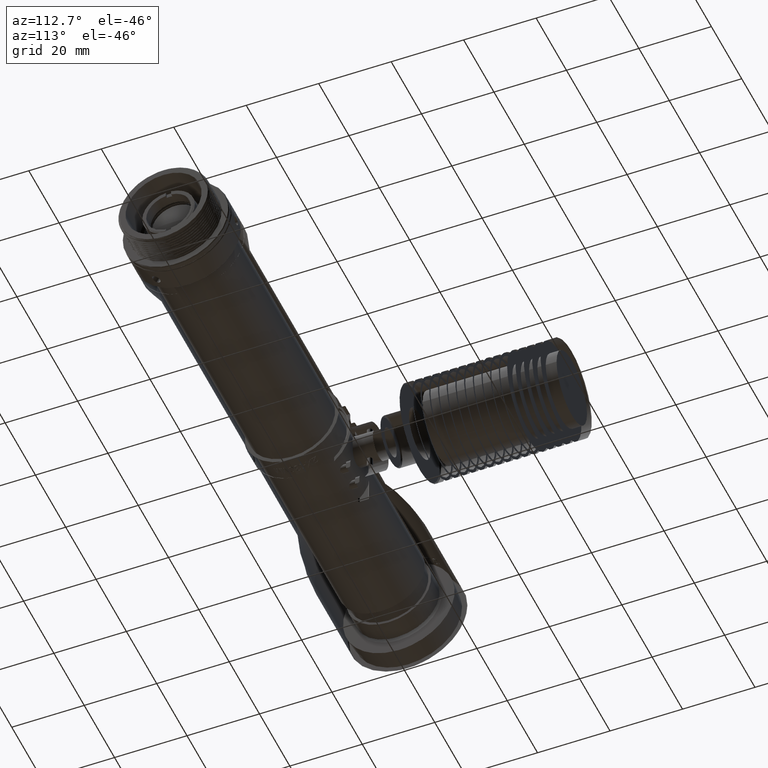
[diagram: clean part render]
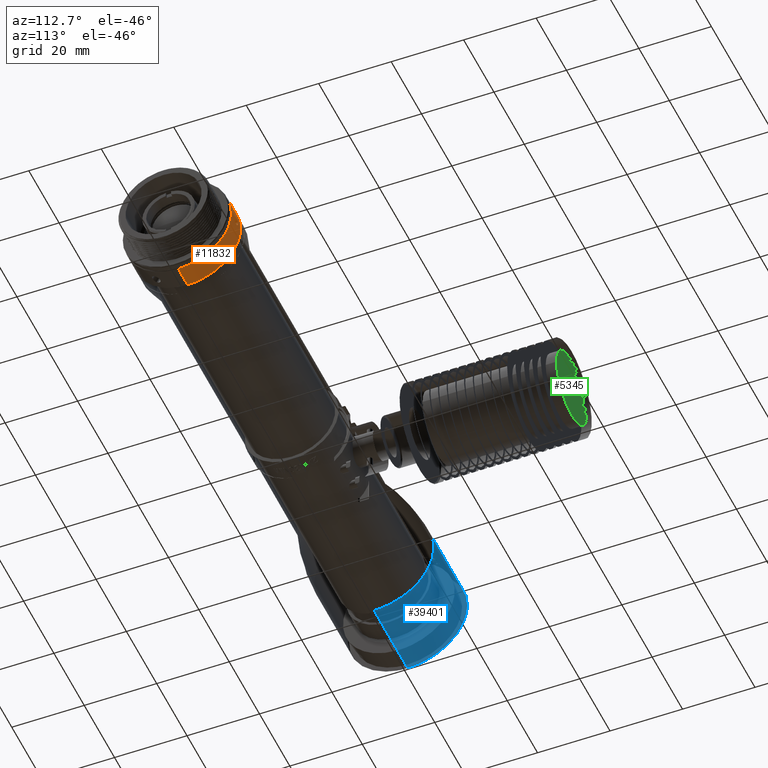
[diagram: same view with three faces highlighted in distinct colors, each labeled with its STEP entity id]
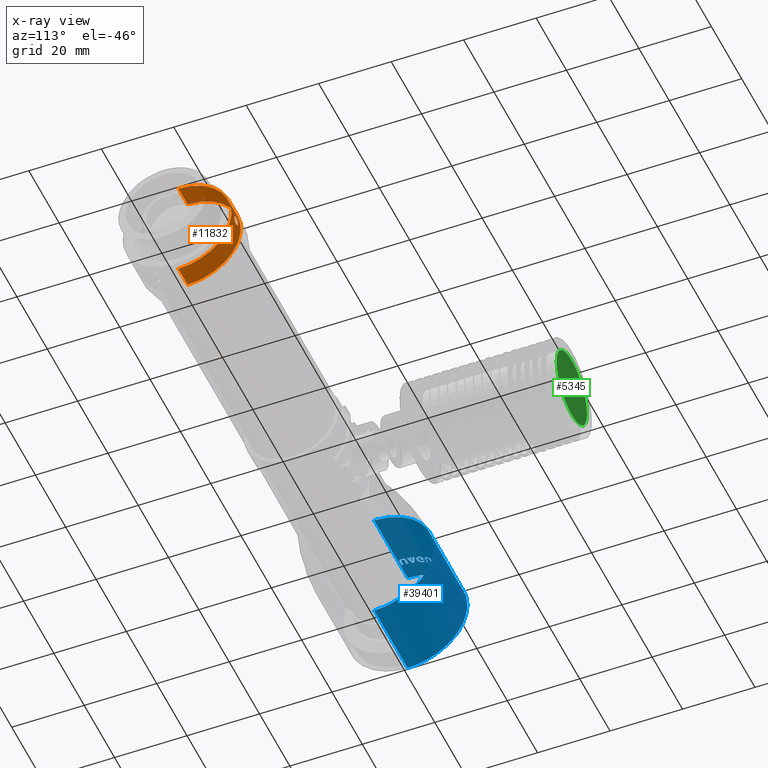
[diagram: x-ray of the same camera — body ghosted, the three highlighted faces saturated]
A machine part, auxiliary view with three faces highlighted in distinct colors.
The next image is the same camera in x-ray (body ghosted, the three faces saturated) — at least one of them is partly hidden behind the body in this view.
Their STEP definitions:

[orange] entity #11832 — the highlighted cylindrical surface (partial cylindrical patch) has radius 14.7 mm, axis along (-1, 0, 0).
#1037 = B_SPLINE_CURVE_WITH_KNOTS ( 'NONE', 3,
 ( #29255, #29035, #25666, #28815 ),
 .UNSPECIFIED., .F., .F.,
 ( 4, 4 ),
 ( 0.9938040929496725351, 1.000000000000000000 ),
 .UNSPECIFIED. ) ;
#1248 = VECTOR ( 'NONE', #4943, 1000.000000000000000 ) ;
#1564 = CARTESIAN_POINT ( 'NONE',  ( 106.1400000000000006, -5.392603844284260389E-30, 14.70000000000001350 ) ) ;
#1822 = CARTESIAN_POINT ( 'NONE',  ( 105.4201194852320356, 14.66794415015094089, 0.9810308543058091635 ) ) ;
#1915 = DIRECTION ( 'NONE',  ( -9.440671978105073736E-16, 6.732884679265400209E-17, -1.000000000000000000 ) ) ;
#1942 = CARTESIAN_POINT ( 'NONE',  ( 106.7077573639596153, 14.66238719472998397, -1.061023981886357381 ) ) ;
#2040 = CARTESIAN_POINT ( 'NONE',  ( 104.9845493852819089, 14.69572960412630636, -0.3332095225108277492 ) ) ;
#2169 = CARTESIAN_POINT ( 'NONE',  ( 106.9713823486024182, 14.67447518610561730, -0.8667400556139596146 ) ) ;
#2259 = CIRCLE ( 'NONE', #14427, 14.69999999999999929 ) ;
#2859 = B_SPLINE_CURVE_WITH_KNOTS ( 'NONE', 3,
 ( #30053, #19067, #11922, #32743, #25572, #39254, #36326, #2040, #19284, #40137, #15929, #39700, #8558, #23109, #29604, #12142, #35882, #5198, #32529, #1822, #29161, #43043, #25795, #26241 ),
 .UNSPECIFIED., .F., .F.,
 ( 4, 2, 2, 2, 2, 2, 2, 2, 2, 2, 2, 4 ),
 ( 0.000000000000000000, 0.1250000000000009992, 0.2500000000000019984, 0.3750000000000029976, 0.4375000000000015543, 0.5000000000000001110, 0.6249999999999970024, 0.6874999999999954481, 0.7187499999999947820, 0.7499999999999940048, 0.8749999999999970024, 1.000000000000000000 ),
 .UNSPECIFIED. ) ;
#3437 = AXIS2_PLACEMENT_3D ( 'NONE', #3704, #13582, #41555 ) ;
#3704 = CARTESIAN_POINT ( 'NONE',  ( 103.0900000000000034, -9.897340478520128816E-16, 2.220446049250309925E-15 ) ) ;
#4943 = DIRECTION ( 'NONE',  ( -1.000000000000000000, 0.000000000000000000, 0.000000000000000000 ) ) ;
#5197 = DIRECTION ( 'NONE',  ( 0.000000000000000000, -3.738315377435139871E-16, 1.000000000000000000 ) ) ;
#5198 = CARTESIAN_POINT ( 'NONE',  ( 105.2140957202224456, 14.68007263470314960, 0.7647717571870255027 ) ) ;
#5313 = CARTESIAN_POINT ( 'NONE',  ( 107.1282778640559457, 14.68385323766793604, 0.6821555653338657876 ) ) ;
#5586 = CARTESIAN_POINT ( 'NONE',  ( 103.0900000000000176, -2.484449628259534250E-29, 14.70000000000000107 ) ) ;
#5981 = CARTESIAN_POINT ( 'NONE',  ( 107.2008222917519191, 14.68856045087693829, 0.5681315630360224134 ) ) ;
#6708 = CIRCLE ( 'NONE', #28165, 14.69999999999999929 ) ;
#6942 = DIRECTION ( 'NONE',  ( -1.000000000000000000, 0.000000000000000000, 0.000000000000000000 ) ) ;
#7894 = VERTEX_POINT ( 'NONE', #21129 ) ;
#8457 = CARTESIAN_POINT ( 'NONE',  ( 106.6311999724527624, 14.65975074339473849, -1.097686682915298695 ) ) ;
#8558 = CARTESIAN_POINT ( 'NONE',  ( 104.9542226073968862, 14.69815720901232581, 0.2414773374950893448 ) ) ;
#8672 = CARTESIAN_POINT ( 'NONE',  ( 106.8218264349597604, 14.66710466438803984, -0.9885053319062949706 ) ) ;
#8896 = CARTESIAN_POINT ( 'NONE',  ( 107.1422698931543636, 14.68451809394208141, -0.6887771761968883855 ) ) ;
#9110 = CARTESIAN_POINT ( 'NONE',  ( 109.1900000000000119, 1.279087800440596137E-14, -14.70000000000000107 ) ) ;
#9127 = CARTESIAN_POINT ( 'NONE',  ( 107.2283405541975867, 14.69049361418253774, -0.5291126339975255055 ) ) ;
#9352 = CARTESIAN_POINT ( 'NONE',  ( 106.8289402787224276, 14.66646975968028421, 1.002116032244771304 ) ) ;
#10576 = B_SPLINE_CURVE_WITH_KNOTS ( 'NONE', 3,
 ( #39818, #32865, #42717, #33092, #9352, #39153, #25697, #36678, #5313, #5981, #19640, #39596, #22320, #25911, #43385, #9127, #8896, #2169, #22774, #26134, #8672, #1942, #8457, #36450, #22550, #11826 ),
 .UNSPECIFIED., .F., .F.,
 ( 4, 2, 2, 2, 2, 2, 2, 2, 2, 2, 2, 2, 4 ),
 ( 0.000000000000000000, 0.1242255116186899294, 0.2484510232373798588, 0.2795074011420570770, 0.3105637790467342674, 0.3726765348560887592, 0.4969020464747939125, 0.6211275580934989549, 0.7453530697122040527, 0.7764094476168833525, 0.8074658255215624303, 0.8695785813309290235, 0.9938040929496725351 ),
 .UNSPECIFIED. ) ;
#10830 = EDGE_CURVE ( 'NONE', #13954, #15358, #22164, .T. ) ;
#11077 = VERTEX_POINT ( 'NONE', #17477 ) ;
#11496 = CARTESIAN_POINT ( 'NONE',  ( 106.1173818233120016, 14.65095599549640148, 1.199786821932710135 ) ) ;
#11826 = CARTESIAN_POINT ( 'NONE',  ( 106.1626204234229505, 14.65095688189569856, -1.199785921705711633 ) ) ;
#11832 = ADVANCED_FACE ( 'NONE', ( #28726, #15928 ), #15491, .T. ) ;
#11922 = CARTESIAN_POINT ( 'NONE',  ( 105.8898029255381630, 14.65296526703026103, -1.183968392647285484 ) ) ;
#12142 = CARTESIAN_POINT ( 'NONE',  ( 105.1321954001451360, 14.68520959436820483, 0.6528971441753838034 ) ) ;
#12779 = ORIENTED_EDGE ( 'NONE', *, *, #33600, .F. ) ;
#13454 = VERTEX_POINT ( 'NONE', #36845 ) ;
#13582 = DIRECTION ( 'NONE',  ( -1.000000000000000000, 6.042030064476740353E-16, 1.208406013197449848E-15 ) ) ;
#13954 = VERTEX_POINT ( 'NONE', #35663 ) ;
#14427 = AXIS2_PLACEMENT_3D ( 'NONE', #30565, #33490, #23625 ) ;
#14861 = ORIENTED_EDGE ( 'NONE', *, *, #21524, .T. ) ;
#15088 = VERTEX_POINT ( 'NONE', #16608 ) ;
#15358 = VERTEX_POINT ( 'NONE', #5586 ) ;
#15491 = CYLINDRICAL_SURFACE ( 'NONE', #21308, 14.69999999999999929 ) ;
#15807 = EDGE_CURVE ( 'NONE', #31728, #7894, #10576, .T. ) ;
#15928 = FACE_OUTER_BOUND ( 'NONE', #29298, .T. ) ;
#15929 = CARTESIAN_POINT ( 'NONE',  ( 104.9405970796551486, 14.69994644175018550, -0.06909788437603540945 ) ) ;
#16000 = CIRCLE ( 'NONE', #22422, 14.69999999999999929 ) ;
#16608 = CARTESIAN_POINT ( 'NONE',  ( 109.1899999999999835, 14.05118971762279578, -4.319035484847423945 ) ) ;
#17477 = CARTESIAN_POINT ( 'NONE',  ( 106.1400000818999985, 14.65093853648969890, -1.199999999999999956 ) ) ;
#18120 = ORIENTED_EDGE ( 'NONE', *, *, #15807, .F. ) ;
#19067 = CARTESIAN_POINT ( 'NONE',  ( 106.0260228014899724, 14.65093853648970246, -1.200000000000001954 ) ) ;
#19284 = CARTESIAN_POINT ( 'NONE',  ( 104.9670998952117458, 14.69728751540549538, -0.2623542678896618185 ) ) ;
#19640 = CARTESIAN_POINT ( 'NONE',  ( 107.2375735900110101, 14.69119188156050804, 0.4914910525792264839 ) ) ;
#20262 = EDGE_CURVE ( 'NONE', #15358, #40112, #22030, .T. ) ;
#20573 = ORIENTED_EDGE ( 'NONE', *, *, #20262, .F. ) ;
#21129 = CARTESIAN_POINT ( 'NONE',  ( 106.1626204234229505, 14.65095688189569856, -1.199785921705711633 ) ) ;
#21308 = AXIS2_PLACEMENT_3D ( 'NONE', #22425, #25352, #5197 ) ;
#21524 = EDGE_CURVE ( 'NONE', #40835, #13454, #31128, .T. ) ;
#21619 = EDGE_CURVE ( 'NONE', #7894, #11077, #1037, .T. ) ;
#22030 = CIRCLE ( 'NONE', #3437, 14.69999999999999929 ) ;
#22164 = LINE ( 'NONE', #1564, #1248 ) ;
#22320 = CARTESIAN_POINT ( 'NONE',  ( 107.3379768650702601, 14.69978863187647100, 0.1329485543329361474 ) ) ;
#22392 = ORIENTED_EDGE ( 'NONE', *, *, #21619, .F. ) ;
#22422 = AXIS2_PLACEMENT_3D ( 'NONE', #24304, #27667, #44244 ) ;
#22425 = CARTESIAN_POINT ( 'NONE',  ( 106.1400000000000006, 5.495323604829649891E-15, 1.332267629550189900E-14 ) ) ;
#22550 = CARTESIAN_POINT ( 'NONE',  ( 106.2743409250073228, 14.65114524264955520, -1.197680433056891980 ) ) ;
#22774 = CARTESIAN_POINT ( 'NONE',  ( 106.9340559669426085, 14.67245779459206823, -0.9009830654385000415 ) ) ;
#23109 = CARTESIAN_POINT ( 'NONE',  ( 105.0301796066591464, 14.69220390997739756, 0.4630264861300382173 ) ) ;
#23625 = DIRECTION ( 'NONE',  ( -9.440671978105073736E-16, 1.000000000000000000, -3.418388614873430875E-10 ) ) ;
#24304 = CARTESIAN_POINT ( 'NONE',  ( 109.1899999999999977, -8.587797282764198720E-15, -2.220446049250309925E-15 ) ) ;
#24627 = CARTESIAN_POINT ( 'NONE',  ( 106.1400000000000006, 1.279087800440591403E-14, -14.69999999999998508 ) ) ;
#25352 = DIRECTION ( 'NONE',  ( -1.000000000000000000, 0.000000000000000000, 0.000000000000000000 ) ) ;
#25408 = EDGE_CURVE ( 'NONE', #11077, #31728, #2859, .T. ) ;
#25562 = CARTESIAN_POINT ( 'NONE',  ( 103.0899999999999892, 4.319035484847318251, -14.05118971762281532 ) ) ;
#25572 = CARTESIAN_POINT ( 'NONE',  ( 105.4370943214186553, 14.66710931084137215, -0.9928074509607620612 ) ) ;
#25666 = CARTESIAN_POINT ( 'NONE',  ( 106.1475023350029119, 14.65093853648970068, -1.199999999487970426 ) ) ;
#25697 = CARTESIAN_POINT ( 'NONE',  ( 107.0408380572285552, 14.67851263513923143, 0.7942161313432416492 ) ) ;
#25795 = CARTESIAN_POINT ( 'NONE',  ( 106.0067537458602089, 14.65112678336259044, 1.197701280156043824 ) ) ;
#25911 = CARTESIAN_POINT ( 'NONE',  ( 107.3416990068149062, 14.70018012549545006, -0.09350606591458278383 ) ) ;
#26134 = CARTESIAN_POINT ( 'NONE',  ( 106.8596996221361195, 14.66880428638325817, -0.9614196881389902583 ) ) ;
#26241 = CARTESIAN_POINT ( 'NONE',  ( 106.1173818233120016, 14.65095599549640148, 1.199786821932710135 ) ) ;
#27369 = EDGE_CURVE ( 'NONE', #40835, #15088, #2259, .T. ) ;
#27667 = DIRECTION ( 'NONE',  ( 1.000000000000000000, 1.208406013610529959E-15, 1.208406013067319945E-15 ) ) ;
#28165 = AXIS2_PLACEMENT_3D ( 'NONE', #42034, #38902, #1915 ) ;
#28726 = FACE_BOUND ( 'NONE', #35580, .T. ) ;
#28815 = CARTESIAN_POINT ( 'NONE',  ( 106.1400000818999985, 14.65093853648969890, -1.199999999999999956 ) ) ;
#29035 = CARTESIAN_POINT ( 'NONE',  ( 106.1570482353705529, 14.65094826664292782, -1.199891836022077385 ) ) ;
#29161 = CARTESIAN_POINT ( 'NONE',  ( 105.5793613604810446, 14.66172303153840240, 1.072409279085417388 ) ) ;
#29255 = CARTESIAN_POINT ( 'NONE',  ( 106.1626204234229505, 14.65095688189569856, -1.199785921705711633 ) ) ;
#29298 = EDGE_LOOP ( 'NONE', ( #40672, #14861, #12779, #20573, #31425, #37028 ) ) ;
#29604 = CARTESIAN_POINT ( 'NONE',  ( 105.0643886650992016, 14.68971116869573379, 0.5392953047049513504 ) ) ;
#30053 = CARTESIAN_POINT ( 'NONE',  ( 106.1400000818999985, 14.65093853648969890, -1.199999999999999956 ) ) ;
#30565 = CARTESIAN_POINT ( 'NONE',  ( 109.1899999999999977, -8.587797282764198720E-15, -2.220446049250309925E-15 ) ) ;
#31128 = LINE ( 'NONE', #24627, #44270 ) ;
#31425 = ORIENTED_EDGE ( 'NONE', *, *, #10830, .F. ) ;
#31728 = VERTEX_POINT ( 'NONE', #11496 ) ;
#32529 = CARTESIAN_POINT ( 'NONE',  ( 105.2444462011152950, 14.67824151956092571, 0.8003274246165735795 ) ) ;
#32743 = CARTESIAN_POINT ( 'NONE',  ( 105.5951550413599449, 14.66107218919248467, -1.080520107125075846 ) ) ;
#32865 = CARTESIAN_POINT ( 'NONE',  ( 106.2337845727361696, 14.65077629267556780, 1.201981226847225193 ) ) ;
#33092 = CARTESIAN_POINT ( 'NONE',  ( 106.6692285085061513, 14.66049485814309961, 1.088348333138490442 ) ) ;
#33490 = DIRECTION ( 'NONE',  ( 1.000000000000000000, 1.208406013610529959E-15, 1.208406013067319945E-15 ) ) ;
#33600 = EDGE_CURVE ( 'NONE', #40112, #13454, #6708, .T. ) ;
#33665 = ORIENTED_EDGE ( 'NONE', *, *, #25408, .F. ) ;
#33939 = EDGE_CURVE ( 'NONE', #15088, #13954, #16000, .T. ) ;
#35580 = EDGE_LOOP ( 'NONE', ( #33665, #22392, #18120 ) ) ;
#35663 = CARTESIAN_POINT ( 'NONE',  ( 109.1899999999999835, -2.927413515468598497E-29, 14.69999999999999751 ) ) ;
#35882 = CARTESIAN_POINT ( 'NONE',  ( 105.1575390799615803, 14.68358199252485896, 0.6906121317342607258 ) ) ;
#36326 = CARTESIAN_POINT ( 'NONE',  ( 105.0639175957408469, 14.68954561941574610, -0.5535571289588059329 ) ) ;
#36450 = CARTESIAN_POINT ( 'NONE',  ( 106.4098480672709286, 14.65336697469934357, -1.179811801830610740 ) ) ;
#36678 = CARTESIAN_POINT ( 'NONE',  ( 107.1012016516172594, 14.68215748873432602, 0.7199860092845098425 ) ) ;
#36845 = CARTESIAN_POINT ( 'NONE',  ( 103.0899999999999892, 1.279087800440592981E-14, -14.69999999999999929 ) ) ;
#37028 = ORIENTED_EDGE ( 'NONE', *, *, #33939, .F. ) ;
#38902 = DIRECTION ( 'NONE',  ( -1.000000000000000000, 6.042030064476740353E-16, 1.208406013197449848E-15 ) ) ;
#39153 = CARTESIAN_POINT ( 'NONE',  ( 107.0067101930913367, 14.67650280508427940, 0.8314103344917536109 ) ) ;
#39254 = CARTESIAN_POINT ( 'NONE',  ( 105.1538402980845746, 14.68340929511138704, -0.7122022676060587587 ) ) ;
#39596 = CARTESIAN_POINT ( 'NONE',  ( 107.3199622013640209, 14.69756603924391847, 0.2694701548821826220 ) ) ;
#39700 = CARTESIAN_POINT ( 'NONE',  ( 104.9389652144864016, 14.70009284195552368, 0.1043215021652879881 ) ) ;
#39818 = CARTESIAN_POINT ( 'NONE',  ( 106.1173818233120016, 14.65095599549640148, 1.199786821932710135 ) ) ;
#40112 = VERTEX_POINT ( 'NONE', #25562 ) ;
#40137 = CARTESIAN_POINT ( 'NONE',  ( 104.9451277620230627, 14.69939650404855414, -0.1296331462405620472 ) ) ;
#40672 = ORIENTED_EDGE ( 'NONE', *, *, #27369, .F. ) ;
#40835 = VERTEX_POINT ( 'NONE', #9110 ) ;
#41555 = DIRECTION ( 'NONE',  ( -9.440671978105073736E-16, 6.732884679265400209E-17, -1.000000000000000000 ) ) ;
#42034 = CARTESIAN_POINT ( 'NONE',  ( 103.0900000000000034, -9.897340478520128816E-16, 2.220446049250309925E-15 ) ) ;
#42717 = CARTESIAN_POINT ( 'NONE',  ( 106.3718212224673891, 14.65264812464073785, 1.187789471781383943 ) ) ;
#43043 = CARTESIAN_POINT ( 'NONE',  ( 105.8724447861881401, 14.65331434814422629, 1.180165900859821093 ) ) ;
#43385 = CARTESIAN_POINT ( 'NONE',  ( 107.3275826252755536, 14.69832704260601197, -0.2325786953065891172 ) ) ;
#44244 = DIRECTION ( 'NONE',  ( -9.440671978105073736E-16, 1.000000000000000000, -3.418388614873430875E-10 ) ) ;
#44270 = VECTOR ( 'NONE', #6942, 1000.000000000000000 ) ;

[blue] entity #39401 — the highlighted cylindrical surface (partial cylindrical patch) has radius 16.5 mm, axis along (1, 0, 0).
#42 = B_SPLINE_CURVE_WITH_KNOTS ( 'NONE', 3,
 ( #1038, #21429, #34879, #13839 ),
 .UNSPECIFIED., .F., .F.,
 ( 4, 4 ),
 ( 0.000000000000000000, 1.000000000000000000 ),
 .UNSPECIFIED. ) ;
#63 = ORIENTED_EDGE ( 'NONE', *, *, #12277, .F. ) ;
#152 = EDGE_CURVE ( 'NONE', #19134, #29912, #23883, .T. ) ;
#311 = B_SPLINE_CURVE_WITH_KNOTS ( 'NONE', 3,
 ( #40094, #44331, #23948, #30235 ),
 .UNSPECIFIED., .F., .F.,
 ( 4, 4 ),
 ( 0.000000000000000000, 1.000000000000000000 ),
 .UNSPECIFIED. ) ;
#358 = CARTESIAN_POINT ( 'NONE',  ( -35.30999998217165370, 3.026607196848110082, 16.22003849790825214 ) ) ;
#421 = B_SPLINE_CURVE_WITH_KNOTS ( 'NONE', 3,
 ( #3325, #14511, #34897, #34015 ),
 .UNSPECIFIED., .F., .F.,
 ( 4, 4 ),
 ( 0.000000000000000000, 1.000000000000000000 ),
 .UNSPECIFIED. ) ;
#599 = CARTESIAN_POINT ( 'NONE',  ( -36.12194841748864604, 8.552355249525760428, 14.11053576888799910 ) ) ;
#697 = B_SPLINE_CURVE_WITH_KNOTS ( 'NONE', 3,
 ( #22153, #38978, #42770, #42546 ),
 .UNSPECIFIED., .F., .F.,
 ( 4, 4 ),
 ( 0.000000000000000000, 1.000000000000000000 ),
 .UNSPECIFIED. ) ;
#740 = CARTESIAN_POINT ( 'NONE',  ( -37.31000000120400273, 1.709528275677060005, 16.41120084190345096 ) ) ;
#768 = CARTESIAN_POINT ( 'NONE',  ( -35.45528173711365127, 0.5772048733887249483, 16.48990098623414724 ) ) ;
#789 = B_SPLINE_CURVE_WITH_KNOTS ( 'NONE', 3,
 ( #36380, #5683, #19335, #39970 ),
 .UNSPECIFIED., .F., .F.,
 ( 4, 4 ),
 ( 0.000000000000000000, 1.000000000000000000 ),
 .UNSPECIFIED. ) ;
#832 = CARTESIAN_POINT ( 'NONE',  ( -42.10999999999999943, 16.09756097560990185, 3.621951219511870157 ) ) ;
#866 = CARTESIAN_POINT ( 'NONE',  ( -35.26790902899999480, 1.542106244411991511, 16.43005810225181662 ) ) ;
#867 = CARTESIAN_POINT ( 'NONE',  ( -35.55137385994200372, 9.566662289828141041, 13.44354762086343946 ) ) ;
#1008 = EDGE_CURVE ( 'NONE', #6778, #33895, #36084, .T. ) ;
#1038 = CARTESIAN_POINT ( 'NONE',  ( -35.71563840776509835, 7.878020471171280015, 14.49782030013530054 ) ) ;
#1141 = CARTESIAN_POINT ( 'NONE',  ( -35.65487441199999807, 1.495173746196152953, 16.43234093612329616 ) ) ;
#1179 = CARTESIAN_POINT ( 'NONE',  ( -37.07917827096429875, 10.84320301324192037, 12.43683836081054039 ) ) ;
#1305 = CARTESIAN_POINT ( 'NONE',  ( -35.31477932000000663, 3.463577443273578638, 16.13429271181626135 ) ) ;
#1353 = ORIENTED_EDGE ( 'NONE', *, *, #36153, .F. ) ;
#1368 = ORIENTED_EDGE ( 'NONE', *, *, #30040, .F. ) ;
#1563 = EDGE_CURVE ( 'NONE', #5890, #37300, #311, .T. ) ;
#1768 = CARTESIAN_POINT ( 'NONE',  ( -35.74991854805609393, 2.191956981667937843, 16.35375567234042649 ) ) ;
#1772 = CARTESIAN_POINT ( 'NONE',  ( -37.25568908199999640, 9.729320502690306682, 13.32785814289743875 ) ) ;
#2108 = CARTESIAN_POINT ( 'NONE',  ( -36.02690428328249794, 6.535885274171769233, 15.15032025016230044 ) ) ;
#2125 = ORIENTED_EDGE ( 'NONE', *, *, #36508, .F. ) ;
#2133 = CARTESIAN_POINT ( 'NONE',  ( -35.31477923488100146, 3.947433728395215002, 16.02085412706465206 ) ) ;
#2140 = AXIS2_PLACEMENT_3D ( 'NONE', #20864, #17517, #3640 ) ;
#2145 = CARTESIAN_POINT ( 'NONE',  ( -20.00000000061569949, 16.49999999960710184, -2.226045136739664861E-05 ) ) ;
#2151 = CARTESIAN_POINT ( 'NONE',  ( -36.29302781410004997, 4.920940734393020044, 15.74910607901055037 ) ) ;
#2172 = CARTESIAN_POINT ( 'NONE',  ( -36.58630760291109141, 3.705194596994555223, 16.07890817467581357 ) ) ;
#2222 = CARTESIAN_POINT ( 'NONE',  ( -35.71563840776509835, 7.878020471171280015, 14.49782030013530054 ) ) ;
#2314 = EDGE_CURVE ( 'NONE', #13504, #3119, #32825, .T. ) ;
#2315 = CARTESIAN_POINT ( 'NONE',  ( -36.18978016796464914, 3.608792811876074591, 16.10051596811654662 ) ) ;
#2387 = CARTESIAN_POINT ( 'NONE',  ( -36.02690428328249794, 6.535885274171769233, 15.15032025016230044 ) ) ;
#2404 = EDGE_CURVE ( 'NONE', #8469, #34058, #14659, .T. ) ;
#2533 = ORIENTED_EDGE ( 'NONE', *, *, #15603, .F. ) ;
#2571 = CARTESIAN_POINT ( 'NONE',  ( -42.10999999999989996, 15.97227470334798838, -4.278162380287442446 ) ) ;
#2612 = CARTESIAN_POINT ( 'NONE',  ( -36.92631033903939652, 6.289149875438849513, 15.25439588593525109 ) ) ;
#2616 = CARTESIAN_POINT ( 'NONE',  ( -37.31000009022130826, 3.350742507043150020, 16.15619155605180168 ) ) ;
#2671 = CARTESIAN_POINT ( 'NONE',  ( -37.31000000120395299, 8.964082800648121463, 13.85262500544634001 ) ) ;
#2744 = B_SPLINE_CURVE_WITH_KNOTS ( 'NONE', 3,
 ( #740, #11068, #7690, #43834 ),
 .UNSPECIFIED., .F., .F.,
 ( 4, 4 ),
 ( 0.000000000000000000, 1.000000000000000000 ),
 .UNSPECIFIED. ) ;
#2809 = CARTESIAN_POINT ( 'NONE',  ( -35.26790902899999480, 10.22385480320031981, 12.95078348843166083 ) ) ;
#2855 = ORIENTED_EDGE ( 'NONE', *, *, #23780, .F. ) ;
#3005 = B_SPLINE_CURVE_WITH_KNOTS ( 'NONE', 3,
 ( #40002, #9087, #866, #16012 ),
 .UNSPECIFIED., .F., .F.,
 ( 4, 4 ),
 ( 0.000000000000000000, 1.000000000000000000 ),
 .UNSPECIFIED. ) ;
#3006 = B_SPLINE_CURVE_WITH_KNOTS ( 'NONE', 3,
 ( #21080, #34986, #1141, #24459 ),
 .UNSPECIFIED., .F., .F.,
 ( 4, 4 ),
 ( 0.000000000000000000, 1.000000000000000000 ),
 .UNSPECIFIED. ) ;
#3036 = CARTESIAN_POINT ( 'NONE',  ( -35.56978626750252914, 4.093356030369432297, 15.98451203373345564 ) ) ;
#3040 = EDGE_CURVE ( 'NONE', #6604, #29683, #697, .T. ) ;
#3119 = VERTEX_POINT ( 'NONE', #36042 ) ;
#3264 = CARTESIAN_POINT ( 'NONE',  ( -35.62636115899999822, 6.002617767895549683, 15.36940402009780016 ) ) ;
#3297 = ORIENTED_EDGE ( 'NONE', *, *, #6055, .F. ) ;
#3302 = CARTESIAN_POINT ( 'NONE',  ( -35.77435844981427948, 8.515045005554727098, 14.13334276772896203 ) ) ;
#3311 = B_SPLINE_CURVE_WITH_KNOTS ( 'NONE', 3,
 ( #35319, #5452, #12181, #2315 ),
 .UNSPECIFIED., .F., .F.,
 ( 4, 4 ),
 ( 0.000000000000000000, 1.000000000000000000 ),
 .UNSPECIFIED. ) ;
#3325 = CARTESIAN_POINT ( 'NONE',  ( -35.45528197320870589, 7.562012855811720335, 14.66512739692633893 ) ) ;
#3354 = LINE ( 'NONE', #20799, #33749 ) ;
#3426 = CARTESIAN_POINT ( 'NONE',  ( -37.31000000115855642, 0.3246574221779420233, 16.49680567739455128 ) ) ;
#3488 = CARTESIAN_POINT ( 'NONE',  ( -35.68881874978913515, 5.658857564556688757, 15.49971119197730474 ) ) ;
#3640 = DIRECTION ( 'NONE',  ( 0.000000000000000000, 1.345724878333519912E-16, 1.000000000000000000 ) ) ;
#3685 = EDGE_CURVE ( 'NONE', #29905, #10377, #17196, .T. ) ;
#3763 = CARTESIAN_POINT ( 'NONE',  ( -35.26790902899999480, 10.22385480320031981, 12.95078348843166083 ) ) ;
#3785 = ORIENTED_EDGE ( 'NONE', *, *, #31761, .F. ) ;
#3819 = CARTESIAN_POINT ( 'NONE',  ( -37.31000000000000227, 7.625638094205119621, 14.63304054584348890 ) ) ;
#3891 = CARTESIAN_POINT ( 'NONE',  ( -20.00000000000000000, 16.49999999974350118, -4.452058805651610071E-05 ) ) ;
#4140 = CARTESIAN_POINT ( 'NONE',  ( -42.11000000000005627, 7.212552351928464667, 14.95567144339329424 ) ) ;
#4149 = EDGE_CURVE ( 'NONE', #13182, #25985, #38037, .T. ) ;
#4272 = CARTESIAN_POINT ( 'NONE',  ( -35.62636115899999822, 1.125504682874358453, 16.46213079811072433 ) ) ;
#4315 = EDGE_CURVE ( 'NONE', #23353, #43006, #10237, .T. ) ;
#4363 = EDGE_CURVE ( 'NONE', #31509, #23525, #10284, .T. ) ;
#4488 = B_SPLINE_CURVE_WITH_KNOTS ( 'NONE', 3,
 ( #19390, #39576, #5734, #29484 ),
 .UNSPECIFIED., .F., .F.,
 ( 4, 4 ),
 ( 0.000000000000000000, 1.000000000000000000 ),
 .UNSPECIFIED. ) ;
#4535 = B_SPLINE_CURVE_WITH_KNOTS ( 'NONE', 3,
 ( #17316, #20009, #13301, #20877 ),
 .UNSPECIFIED., .F., .F.,
 ( 4, 4 ),
 ( 0.000000000000000000, 1.000000000000000000 ),
 .UNSPECIFIED. ) ;
#4601 = CARTESIAN_POINT ( 'NONE',  ( -36.89542656967056189, 7.768526467919583567, 14.55678523984931516 ) ) ;
#4610 = CARTESIAN_POINT ( 'NONE',  ( -37.31000000120395299, 0.8102068213810270647, 16.48009602238430205 ) ) ;
#4688 = EDGE_CURVE ( 'NONE', #38125, #15332, #27881, .T. ) ;
#4693 = EDGE_CURVE ( 'NONE', #17179, #10089, #8120, .T. ) ;
#4831 = B_SPLINE_CURVE_WITH_KNOTS ( 'NONE', 3,
 ( #36406, #29681, #36631, #16457, #22725, #30127, #19595, #43574, #15569, #40216, #33496, #33267, #29911, #33045, #2571, #22507, #39775, #6157 ),
 .UNSPECIFIED., .F., .F.,
 ( 4, 2, 2, 2, 2, 2, 2, 2, 4 ),
 ( 0.000000000000000000, 0.1249999999999999722, 0.2499999999999999445, 0.3749999999999999445, 0.5000000000000000000, 0.6250000000000001110, 0.7500000000000000000, 0.8750000000000000000, 1.000000000000000000 ),
 .UNSPECIFIED. ) ;
#4896 = EDGE_LOOP ( 'NONE', ( #13776, #23295, #2533, #3785, #8908, #26762, #63, #14744, #10043, #23084, #20913, #24615, #44283, #10255, #29375, #27767, #34701, #7807, #18767, #9073, #18980, #43246 ) ) ;
#5069 = CARTESIAN_POINT ( 'NONE',  ( -35.89811480964674928, 3.721953097859248771, 16.07515210616949730 ) ) ;
#5091 = CARTESIAN_POINT ( 'NONE',  ( -37.31000009022130826, 3.350742507043150020, 16.15619155605180168 ) ) ;
#5242 = CARTESIAN_POINT ( 'NONE',  ( -35.62636115899999822, 8.164193990655780553, 14.33861696543940134 ) ) ;
#5273 = VERTEX_POINT ( 'NONE', #11873 ) ;
#5361 = CARTESIAN_POINT ( 'NONE',  ( -35.95901560415634890, 8.964082799914418587, 13.85262500598490121 ) ) ;
#5370 = CARTESIAN_POINT ( 'NONE',  ( -36.31746774452224713, 5.382483939415430463, 15.59739935507635167 ) ) ;
#5452 = CARTESIAN_POINT ( 'NONE',  ( -35.60644388021788842, 3.349806599562820342, 16.15692924660066154 ) ) ;
#5471 = CARTESIAN_POINT ( 'NONE',  ( -35.26790902874390099, 6.130069646817670304, 15.31901583399585043 ) ) ;
#5492 = EDGE_CURVE ( 'NONE', #13282, #26089, #34778, .T. ) ;
#5528 = CARTESIAN_POINT ( 'NONE',  ( -35.82957591191014757, 3.225966927741522827, 16.18188598602024086 ) ) ;
#5536 = CARTESIAN_POINT ( 'NONE',  ( -36.29574340304879598, 9.311964525069610588, 13.62120834156525895 ) ) ;
#5597 = ORIENTED_EDGE ( 'NONE', *, *, #39204, .F. ) ;
#5683 = CARTESIAN_POINT ( 'NONE',  ( -35.33036659800001900, 8.599867787706831024, 14.08267518790614226 ) ) ;
#5729 = CARTESIAN_POINT ( 'NONE',  ( -35.33020684791330979, 5.498444167736350252, 15.55786805276198947 ) ) ;
#5731 = CARTESIAN_POINT ( 'NONE',  ( -35.55137385994200372, 9.566662289828141041, 13.44354762086343946 ) ) ;
#5734 = CARTESIAN_POINT ( 'NONE',  ( -36.65148001699999725, 11.07924010353293198, 12.22703743527189779 ) ) ;
#5749 = CARTESIAN_POINT ( 'NONE',  ( -37.31000000000000227, 3.529954635592162493, 16.11902328904869464 ) ) ;
#5787 = B_SPLINE_CURVE_WITH_KNOTS ( 'NONE', 3,
 ( #13422, #40530, #23502, #37175 ),
 .UNSPECIFIED., .F., .F.,
 ( 4, 4 ),
 ( 0.000000000000000000, 1.000000000000000000 ),
 .UNSPECIFIED. ) ;
#5890 = VERTEX_POINT ( 'NONE', #6091 ) ;
#5891 = CARTESIAN_POINT ( 'NONE',  ( -35.74177190415417726, 0.3246574179651338099, 16.49680549180252953 ) ) ;
#6055 = EDGE_CURVE ( 'NONE', #22229, #33269, #24518, .T. ) ;
#6091 = CARTESIAN_POINT ( 'NONE',  ( -35.71461636606505152, 1.580613144876874987, 16.42411830474209822 ) ) ;
#6120 = CARTESIAN_POINT ( 'NONE',  ( -31.05499999999999972, 2.020667218593128367E-15, 16.50000000000000000 ) ) ;
#6143 = CARTESIAN_POINT ( 'NONE',  ( -35.30999990999309546, 4.702505878119570326, 15.81570230448540393 ) ) ;
#6157 = CARTESIAN_POINT ( 'NONE',  ( -42.10999999999999943, 16.50000000000000000, 1.403400386199941896E-10 ) ) ;
#6176 = B_SPLINE_CURVE_WITH_KNOTS ( 'NONE', 3,
 ( #26714, #19986, #16848, #20198 ),
 .UNSPECIFIED., .F., .F.,
 ( 4, 4 ),
 ( 0.000000000000000000, 1.000000000000000000 ),
 .UNSPECIFIED. ) ;
#6257 = CARTESIAN_POINT ( 'NONE',  ( -36.40934373641361788, 8.964082799955642500, 13.85262500593145418 ) ) ;
#6298 = CARTESIAN_POINT ( 'NONE',  ( -35.54727282610595296, 5.210278251168730002, 15.65576572851879966 ) ) ;
#6309 = CARTESIAN_POINT ( 'NONE',  ( -35.50919892690189528, 5.249464982922634526, 15.64272421981656436 ) ) ;
#6329 = ORIENTED_EDGE ( 'NONE', *, *, #2404, .F. ) ;
#6542 = EDGE_CURVE ( 'NONE', #33680, #29905, #19196, .T. ) ;
#6565 = EDGE_CURVE ( 'NONE', #24904, #26380, #26660, .T. ) ;
#6593 = CARTESIAN_POINT ( 'NONE',  ( -35.45528197320870589, 7.562012855811720335, 14.66512739692633893 ) ) ;
#6604 = VERTEX_POINT ( 'NONE', #358 ) ;
#6649 = ORIENTED_EDGE ( 'NONE', *, *, #27473, .F. ) ;
#6661 = CARTESIAN_POINT ( 'NONE',  ( -36.88501697643084754, 6.905661519939569892, 14.98544242562721607 ) ) ;
#6719 = CARTESIAN_POINT ( 'NONE',  ( -35.31477921984674850, 3.219819873073275218, 16.18279209472049729 ) ) ;
#6738 = B_SPLINE_CURVE_WITH_KNOTS ( 'NONE', 3,
 ( #11720, #11505, #18438, #1179 ),
 .UNSPECIFIED., .F., .F.,
 ( 4, 4 ),
 ( 0.000000000000000000, 1.000000000000000000 ),
 .UNSPECIFIED. ) ;
#6778 = VERTEX_POINT ( 'NONE', #21829 ) ;
#6782 = FACE_OUTER_BOUND ( 'NONE', #38224, .T. ) ;
#6816 = CARTESIAN_POINT ( 'NONE',  ( -35.94000679085100103, 7.336586665060830015, 14.77919132109293976 ) ) ;
#6938 = CARTESIAN_POINT ( 'NONE',  ( -35.62636115899999822, 1.261145663698332031, 16.45173278460359612 ) ) ;
#6998 = ORIENTED_EDGE ( 'NONE', *, *, #19083, .F. ) ;
#7099 = CARTESIAN_POINT ( 'NONE',  ( -37.17211410927215098, 6.637698885369689883, 15.10599064961474980 ) ) ;
#7208 = B_SPLINE_CURVE_WITH_KNOTS ( 'NONE', 3,
 ( #15360, #36864, #40008, #29250 ),
 .UNSPECIFIED., .F., .F.,
 ( 4, 4 ),
 ( 0.000000000000000000, 1.000000000000000000 ),
 .UNSPECIFIED. ) ;
#7326 = EDGE_CURVE ( 'NONE', #14041, #18337, #10873, .T. ) ;
#7690 = CARTESIAN_POINT ( 'NONE',  ( -37.31000000000000227, 2.031429353041355412, 16.37527180987895647 ) ) ;
#7698 = CARTESIAN_POINT ( 'NONE',  ( -35.57748132690689857, 10.85174552006296089, 12.42938530938761943 ) ) ;
#7709 = VERTEX_POINT ( 'NONE', #15350 ) ;
#7782 = CARTESIAN_POINT ( 'NONE',  ( -37.05473848687145022, 5.210699216850829707, 15.65562562374450017 ) ) ;
#7807 = ORIENTED_EDGE ( 'NONE', *, *, #32556, .F. ) ;
#7867 = VERTEX_POINT ( 'NONE', #31010 ) ;
#8120 = B_SPLINE_CURVE_WITH_KNOTS ( 'NONE', 3,
 ( #29790, #9411, #15455, #36287 ),
 .UNSPECIFIED., .F., .F.,
 ( 4, 4 ),
 ( 0.000000000000000000, 1.000000000000000000 ),
 .UNSPECIFIED. ) ;
#8189 = EDGE_CURVE ( 'NONE', #37360, #28274, #43953, .T. ) ;
#8207 = CARTESIAN_POINT ( 'NONE',  ( -35.62636115899999822, 6.002617767895549683, 15.36940402009780016 ) ) ;
#8233 = B_SPLINE_CURVE_WITH_KNOTS ( 'NONE', 3,
 ( #3426, #31198, #13960, #41501 ),
 .UNSPECIFIED., .F., .F.,
 ( 4, 4 ),
 ( 0.000000000000000000, 1.000000000000000000 ),
 .UNSPECIFIED. ) ;
#8413 = CARTESIAN_POINT ( 'NONE',  ( -37.06258765472210115, 9.563359930465258785, 13.44589702623770044 ) ) ;
#8459 = CARTESIAN_POINT ( 'NONE',  ( -36.64335581147094700, 4.160289123196844407, 15.96938934018006506 ) ) ;
#8469 = VERTEX_POINT ( 'NONE', #28069 ) ;
#8614 = CARTESIAN_POINT ( 'NONE',  ( -35.95901560415634890, 8.964082799914418587, 13.85262500598490121 ) ) ;
#8642 = CARTESIAN_POINT ( 'NONE',  ( -35.46292654700000213, 6.776061401664033035, 15.04745502586182582 ) ) ;
#8700 = CARTESIAN_POINT ( 'NONE',  ( -37.31000000120400273, 7.768526467629359722, 14.55678523997396034 ) ) ;
#8908 = ORIENTED_EDGE ( 'NONE', *, *, #30144, .F. ) ;
#8957 = B_SPLINE_CURVE_WITH_KNOTS ( 'NONE', 3,
 ( #35550, #15383, #11815, #832 ),
 .UNSPECIFIED., .F., .F.,
 ( 4, 4 ),
 ( 0.000000000000000000, 1.000000000000000000 ),
 .UNSPECIFIED. ) ;
#8983 = EDGE_CURVE ( 'NONE', #25985, #12791, #16648, .T. ) ;
#9036 = CARTESIAN_POINT ( 'NONE',  ( -37.31000000120395299, 8.964082800648121463, 13.85262500544634001 ) ) ;
#9073 = ORIENTED_EDGE ( 'NONE', *, *, #19615, .F. ) ;
#9087 = CARTESIAN_POINT ( 'NONE',  ( -35.33036659799999768, 1.764387676919344949, 16.40629153706671417 ) ) ;
#9104 = CARTESIAN_POINT ( 'NONE',  ( -20.00000000000995115, -3.263421380982265094E-11, 16.49999999956105157 ) ) ;
#9171 = B_SPLINE_CURVE_WITH_KNOTS ( 'NONE', 3,
 ( #867, #14101, #42088, #35367 ),
 .UNSPECIFIED., .F., .F.,
 ( 4, 4 ),
 ( 0.000000000000000000, 1.000000000000000000 ),
 .UNSPECIFIED. ) ;
#9175 = CARTESIAN_POINT ( 'NONE',  ( -35.95901560415274645, 2.191956982149380284, 16.35375567221250037 ) ) ;
#9396 = CARTESIAN_POINT ( 'NONE',  ( -35.45663945029464514, 1.934871570086524883, 16.38616099046234709 ) ) ;
#9411 = CARTESIAN_POINT ( 'NONE',  ( -36.97191446800001557, 6.204334131518196571, 15.28936402848803056 ) ) ;
#9489 = ORIENTED_EDGE ( 'NONE', *, *, #39671, .F. ) ;
#9672 = CARTESIAN_POINT ( 'NONE',  ( -35.73498302499999824, 5.017081468887592877, 15.72006195430959785 ) ) ;
#9943 = FACE_BOUND ( 'NONE', #36175, .T. ) ;
#9983 = ORIENTED_EDGE ( 'NONE', *, *, #29474, .F. ) ;
#10038 = VERTEX_POINT ( 'NONE', #31775 ) ;
#10043 = ORIENTED_EDGE ( 'NONE', *, *, #11229, .F. ) ;
#10089 = VERTEX_POINT ( 'NONE', #29288 ) ;
#10161 = FACE_BOUND ( 'NONE', #21530, .T. ) ;
#10199 = VERTEX_POINT ( 'NONE', #30180 ) ;
#10210 = ORIENTED_EDGE ( 'NONE', *, *, #6565, .F. ) ;
#10237 = B_SPLINE_CURVE_WITH_KNOTS ( 'NONE', 3,
 ( #34584, #34144, #41093, #6593 ),
 .UNSPECIFIED., .F., .F.,
 ( 4, 4 ),
 ( 0.000000000000000000, 1.000000000000000000 ),
 .UNSPECIFIED. ) ;
#10255 = ORIENTED_EDGE ( 'NONE', *, *, #32480, .F. ) ;
#10284 = B_SPLINE_CURVE_WITH_KNOTS ( 'NONE', 3,
 ( #18443, #24721, #38392, #7698 ),
 .UNSPECIFIED., .F., .F.,
 ( 4, 4 ),
 ( 0.000000000000000000, 1.000000000000000000 ),
 .UNSPECIFIED. ) ;
#10377 = VERTEX_POINT ( 'NONE', #25202 ) ;
#10481 = ORIENTED_EDGE ( 'NONE', *, *, #26403, .F. ) ;
#10533 = ORIENTED_EDGE ( 'NONE', *, *, #38892, .F. ) ;
#10703 = CARTESIAN_POINT ( 'NONE',  ( -35.91013580363516411, 8.552355291667913306, 14.11053583902900499 ) ) ;
#10724 = CARTESIAN_POINT ( 'NONE',  ( -35.57748132690689857, 10.85174552006296089, 12.42938530938761943 ) ) ;
#10851 = CARTESIAN_POINT ( 'NONE',  ( -35.71563817261070284, 0.9343942791662620539, 16.47352140052110059 ) ) ;
#10873 = B_SPLINE_CURVE_WITH_KNOTS ( 'NONE', 3,
 ( #42948, #18762, #32438, #12266 ),
 .UNSPECIFIED., .F., .F.,
 ( 4, 4 ),
 ( 0.000000000000000000, 1.000000000000000000 ),
 .UNSPECIFIED. ) ;
#10904 = ORIENTED_EDGE ( 'NONE', *, *, #43173, .F. ) ;
#10958 = CARTESIAN_POINT ( 'NONE',  ( -35.73362525199055284, 6.349518191478560780, 15.22936698409240108 ) ) ;
#11068 = CARTESIAN_POINT ( 'NONE',  ( -37.31000000000000227, 1.870619783922242707, 16.39442019983104259 ) ) ;
#11095 = B_SPLINE_CURVE_WITH_KNOTS ( 'NONE', 3,
 ( #17050, #30051, #43711, #43936 ),
 .UNSPECIFIED., .F., .F.,
 ( 4, 4 ),
 ( 0.000000000000000000, 1.000000000000000000 ),
 .UNSPECIFIED. ) ;
#11120 = VERTEX_POINT ( 'NONE', #2151 ) ;
#11229 = EDGE_CURVE ( 'NONE', #14371, #39892, #38390, .T. ) ;
#11247 = ORIENTED_EDGE ( 'NONE', *, *, #36817, .F. ) ;
#11493 = CARTESIAN_POINT ( 'NONE',  ( -35.81340318995620464, 5.548573478837409922, 15.53909046083525070 ) ) ;
#11505 = CARTESIAN_POINT ( 'NONE',  ( -37.35344868699999665, 10.47937540888186447, 12.74910658928300755 ) ) ;
#11526 = CARTESIAN_POINT ( 'NONE',  ( -36.12194841748864604, 8.552355249525760428, 14.11053576888799910 ) ) ;
#11585 = B_SPLINE_CURVE_WITH_KNOTS ( 'NONE', 3,
 ( #27305, #40974, #20776, #34459 ),
 .UNSPECIFIED., .F., .F.,
 ( 4, 4 ),
 ( 0.000000000000000000, 1.000000000000000000 ),
 .UNSPECIFIED. ) ;
#11607 = B_SPLINE_CURVE_WITH_KNOTS ( 'NONE', 3,
 ( #19840, #30374, #19391, #27010 ),
 .UNSPECIFIED., .F., .F.,
 ( 4, 4 ),
 ( 0.000000000000000000, 1.000000000000000000 ),
 .UNSPECIFIED. ) ;
#11678 = EDGE_CURVE ( 'NONE', #15332, #14371, #43691, .T. ) ;
#11720 = CARTESIAN_POINT ( 'NONE',  ( -37.35344868699999665, 10.22258336253019984, 12.95178711201003985 ) ) ;
#11815 = CARTESIAN_POINT ( 'NONE',  ( -42.10999999999991417, 16.36475768038534540, 2.434410309398772565 ) ) ;
#11866 = B_SPLINE_CURVE_WITH_KNOTS ( 'NONE', 3,
 ( #29557, #43666, #39868, #2222 ),
 .UNSPECIFIED., .F., .F.,
 ( 4, 4 ),
 ( 0.000000000000000000, 1.000000000000000000 ),
 .UNSPECIFIED. ) ;
#11873 = CARTESIAN_POINT ( 'NONE',  ( -36.38535636352889213, 6.038806124856689550, 15.35522128099555061 ) ) ;
#12036 = CARTESIAN_POINT ( 'NONE',  ( -37.31000041182289806, 3.886375301400879945, 16.03577522342004968 ) ) ;
#12039 = EDGE_CURVE ( 'NONE', #29912, #32502, #11095, .T. ) ;
#12042 = EDGE_CURVE ( 'NONE', #28269, #39567, #41000, .T. ) ;
#12060 = CARTESIAN_POINT ( 'NONE',  ( -37.31000000115855642, 8.552355250003078169, 14.11053576846589941 ) ) ;
#12181 = CARTESIAN_POINT ( 'NONE',  ( -35.89811584099626174, 3.479466101297785219, 16.12950356984422484 ) ) ;
#12254 = CARTESIAN_POINT ( 'NONE',  ( -36.64335533111375298, 3.074771274626102890, 16.21342613927384946 ) ) ;
#12266 = CARTESIAN_POINT ( 'NONE',  ( -37.17211410927215098, 6.637698885369689883, 15.10599064961474980 ) ) ;
#12277 = EDGE_CURVE ( 'NONE', #26939, #6778, #33463, .T. ) ;
#12396 = CARTESIAN_POINT ( 'NONE',  ( -37.31000000000000227, 8.828106104095535756, 13.94061600843160242 ) ) ;
#12400 = CARTESIAN_POINT ( 'NONE',  ( -35.58019688525141078, 0.4088785248850514420, 16.49579288014155054 ) ) ;
#12420 = B_SPLINE_CURVE_WITH_KNOTS ( 'NONE', 3,
 ( #21987, #15060, #42389, #35667 ),
 .UNSPECIFIED., .F., .F.,
 ( 4, 4 ),
 ( 0.000000000000000000, 1.000000000000000000 ),
 .UNSPECIFIED. ) ;
#12441 = ORIENTED_EDGE ( 'NONE', *, *, #25067, .F. ) ;
#12451 = CARTESIAN_POINT ( 'NONE',  ( -35.31477921984674850, 3.219819873073275218, 16.18279209472049729 ) ) ;
#12477 = CARTESIAN_POINT ( 'NONE',  ( -35.73362525199055284, 6.349518191478560780, 15.22936698409240108 ) ) ;
#12587 = B_SPLINE_CURVE_WITH_KNOTS ( 'NONE', 3,
 ( #35290, #4601, #31930, #38875 ),
 .UNSPECIFIED., .F., .F.,
 ( 4, 4 ),
 ( 0.000000000000000000, 1.000000000000000000 ),
 .UNSPECIFIED. ) ;
#12680 = CARTESIAN_POINT ( 'NONE',  ( -36.16790902804444841, 6.951204852207790275, 14.96431592493000196 ) ) ;
#12684 = CARTESIAN_POINT ( 'NONE',  ( -35.44480893328294968, 5.334113980053140303, 15.61400743068764996 ) ) ;
#12780 = VERTEX_POINT ( 'NONE', #19471 ) ;
#12785 = B_SPLINE_CURVE_WITH_KNOTS ( 'NONE', 3,
 ( #10724, #17642, #28178, #3763 ),
 .UNSPECIFIED., .F., .F.,
 ( 4, 4 ),
 ( 0.000000000000000000, 1.000000000000000000 ),
 .UNSPECIFIED. ) ;
#12791 = VERTEX_POINT ( 'NONE', #26642 ) ;
#12878 = CARTESIAN_POINT ( 'NONE',  ( -36.39667119412473539, 0.3246574210081071832, 16.49680567741196668 ) ) ;
#12935 = CARTESIAN_POINT ( 'NONE',  ( -36.88094359400000144, 6.373524068149081678, 15.21960962013891283 ) ) ;
#12956 = B_SPLINE_CURVE_WITH_KNOTS ( 'NONE', 3,
 ( #15392, #35995, #19188, #43155 ),
 .UNSPECIFIED., .F., .F.,
 ( 4, 4 ),
 ( 0.000000000000000000, 1.000000000000000000 ),
 .UNSPECIFIED. ) ;
#13014 = EDGE_CURVE ( 'NONE', #7709, #10038, #36627, .T. ) ;
#13023 = VERTEX_POINT ( 'NONE', #2616 ) ;
#13182 = VERTEX_POINT ( 'NONE', #34194 ) ;
#13282 = VERTEX_POINT ( 'NONE', #27911 ) ;
#13301 = CARTESIAN_POINT ( 'NONE',  ( -36.85650378199999722, 5.017083264118769037, 15.72006735794151133 ) ) ;
#13349 = EDGE_CURVE ( 'NONE', #39562, #40825, #12587, .T. ) ;
#13370 = ORIENTED_EDGE ( 'NONE', *, *, #38239, .F. ) ;
#13402 = CARTESIAN_POINT ( 'NONE',  ( -36.92631033903939652, 6.289149875438849513, 15.25439588593525109 ) ) ;
#13422 = CARTESIAN_POINT ( 'NONE',  ( -36.99499660500000431, 5.999600521087580240, 15.37058208353580113 ) ) ;
#13504 = VERTEX_POINT ( 'NONE', #3891 ) ;
#13562 = ORIENTED_EDGE ( 'NONE', *, *, #17338, .F. ) ;
#13696 = CARTESIAN_POINT ( 'NONE',  ( -37.31000000120400273, 7.768526467629359722, 14.55678523997396034 ) ) ;
#13765 = CARTESIAN_POINT ( 'NONE',  ( -36.18978016796464914, 3.608792811876074591, 16.10051596811654662 ) ) ;
#13776 = ORIENTED_EDGE ( 'NONE', *, *, #12039, .F. ) ;
#13839 = CARTESIAN_POINT ( 'NONE',  ( -35.62636115899999822, 8.164193990655780553, 14.33861696543940134 ) ) ;
#13864 = EDGE_CURVE ( 'NONE', #11120, #41867, #4535, .T. ) ;
#13960 = CARTESIAN_POINT ( 'NONE',  ( -37.31000000000000227, 0.6484390324529670790, 16.48804897153589621 ) ) ;
#14010 = CARTESIAN_POINT ( 'NONE',  ( -42.10999999999992838, 15.69024784585304388, 5.432231796209229024 ) ) ;
#14041 = VERTEX_POINT ( 'NONE', #18425 ) ;
#14101 = CARTESIAN_POINT ( 'NONE',  ( -35.74041411000000323, 9.398093162719952431, 13.56350419120916229 ) ) ;
#14307 = CARTESIAN_POINT ( 'NONE',  ( -35.62636115899999822, 6.002617767895549683, 15.36940402009780016 ) ) ;
#14371 = VERTEX_POINT ( 'NONE', #21713 ) ;
#14464 = EDGE_CURVE ( 'NONE', #10038, #21620, #40334, .T. ) ;
#14511 = CARTESIAN_POINT ( 'NONE',  ( -35.58019688499999944, 7.412314048881198936, 14.74231885048365065 ) ) ;
#14603 = B_SPLINE_CURVE_WITH_KNOTS ( 'NONE', 3,
 ( #7099, #23692, #6661, #23473 ),
 .UNSPECIFIED., .F., .F.,
 ( 4, 4 ),
 ( 0.000000000000000000, 1.000000000000000000 ),
 .UNSPECIFIED. ) ;
#14621 = EDGE_CURVE ( 'NONE', #10089, #38125, #5787, .T. ) ;
#14639 = CARTESIAN_POINT ( 'NONE',  ( -36.06627970570810504, 0.8102068217868790834, 16.48009602224520265 ) ) ;
#14659 = B_SPLINE_CURVE_WITH_KNOTS ( 'NONE', 3,
 ( #34977, #28260, #38564, #41919 ),
 .UNSPECIFIED., .F., .F.,
 ( 4, 4 ),
 ( 0.000000000000000000, 1.000000000000000000 ),
 .UNSPECIFIED. ) ;
#14744 = ORIENTED_EDGE ( 'NONE', *, *, #30999, .F. ) ;
#14756 = EDGE_CURVE ( 'NONE', #37300, #16865, #35703, .T. ) ;
#14805 = EDGE_CURVE ( 'NONE', #37136, #6604, #23961, .T. ) ;
#14807 = EDGE_CURVE ( 'NONE', #29683, #13023, #19672, .T. ) ;
#14850 = CARTESIAN_POINT ( 'NONE',  ( -35.45528197320870589, 7.562012855811720335, 14.66512739692633893 ) ) ;
#14860 = EDGE_CURVE ( 'NONE', #13023, #33680, #41576, .T. ) ;
#14893 = CARTESIAN_POINT ( 'NONE',  ( -36.67184656739980397, 6.498689877134830262, 15.16631233628525166 ) ) ;
#14943 = VECTOR ( 'NONE', #21090, 1000.000000000000000 ) ;
#15035 = ORIENTED_EDGE ( 'NONE', *, *, #4363, .F. ) ;
#15060 = CARTESIAN_POINT ( 'NONE',  ( -36.38535636399999618, 6.346860175264629866, 15.23407169589363441 ) ) ;
#15166 = CARTESIAN_POINT ( 'NONE',  ( -35.30999958885625034, 2.518948419016600049, 16.30659065718945300 ) ) ;
#15188 = ORIENTED_EDGE ( 'NONE', *, *, #41875, .F. ) ;
#15252 = ORIENTED_EDGE ( 'NONE', *, *, #33536, .F. ) ;
#15332 = VERTEX_POINT ( 'NONE', #42339 ) ;
#15350 = CARTESIAN_POINT ( 'NONE',  ( -37.31000000120400273, 2.191956982548635136, 16.35375567213259984 ) ) ;
#15360 = CARTESIAN_POINT ( 'NONE',  ( -36.83478025297340253, 3.608793452647109934, 16.10051582462480013 ) ) ;
#15383 = CARTESIAN_POINT ( 'NONE',  ( -42.10999999999991417, 16.49999999998973976, 1.217229433006333128 ) ) ;
#15384 = B_SPLINE_CURVE_WITH_KNOTS ( 'NONE', 3,
 ( #41337, #14010, #27457, #18249, #34831, #31913, #4140, #41120, #20701, #38197 ),
 .UNSPECIFIED., .F., .F.,
 ( 4, 2, 2, 2, 4 ),
 ( 0.000000000000000000, 0.07512021193468013114, 0.1502404238693602623, 0.2253606358040403934, 0.3004808477387205246 ),
 .UNSPECIFIED. ) ;
#15389 = CARTESIAN_POINT ( 'NONE',  ( -35.56978647819444461, 3.126376602444645325, 16.20142165780066534 ) ) ;
#15392 = CARTESIAN_POINT ( 'NONE',  ( -37.05473848687145022, 5.210699216850829707, 15.65562562374450017 ) ) ;
#15455 = CARTESIAN_POINT ( 'NONE',  ( -36.99499660500002562, 6.108223933042705056, 15.32818295592802116 ) ) ;
#15569 = CARTESIAN_POINT ( 'NONE',  ( -42.10999999999988574, 10.90364138463086974, -12.43088239453187249 ) ) ;
#15603 = EDGE_CURVE ( 'NONE', #40491, #19134, #11585, .T. ) ;
#15708 = CARTESIAN_POINT ( 'NONE',  ( -37.31000000115855642, 0.3246574221779420233, 16.49680567739455128 ) ) ;
#15806 = CARTESIAN_POINT ( 'NONE',  ( -20.00000000000000000, 16.49999999974350118, -4.452058805651610071E-05 ) ) ;
#15838 = VERTEX_POINT ( 'NONE', #35780 ) ;
#15917 = CARTESIAN_POINT ( 'NONE',  ( -35.98345553600000102, 4.920940671177679526, 15.74910587670274076 ) ) ;
#16012 = CARTESIAN_POINT ( 'NONE',  ( -35.26790902899999480, 1.269219514037947860, 16.45111187196589952 ) ) ;
#16044 = CARTESIAN_POINT ( 'NONE',  ( -37.31000000000000227, 3.708498877377389036, 16.07888451116401285 ) ) ;
#16386 = CARTESIAN_POINT ( 'NONE',  ( -37.07917827096429875, 10.84320301324192037, 12.43683836081054039 ) ) ;
#16413 = VERTEX_POINT ( 'NONE', #29876 ) ;
#16421 = EDGE_CURVE ( 'NONE', #34058, #12780, #32922, .T. ) ;
#16457 = CARTESIAN_POINT ( 'NONE',  ( -42.10999999999988574, 4.278162380423295552, -15.97227470331160859 ) ) ;
#16472 = CARTESIAN_POINT ( 'NONE',  ( -36.08936159458144743, 3.897391588084705205, 16.03310134721474967 ) ) ;
#16648 = B_SPLINE_CURVE_WITH_KNOTS ( 'NONE', 3,
 ( #35831, #1772, #43437, #40087 ),
 .UNSPECIFIED., .F., .F.,
 ( 4, 4 ),
 ( 0.000000000000000000, 1.000000000000000000 ),
 .UNSPECIFIED. ) ;
#16787 = ORIENTED_EDGE ( 'NONE', *, *, #16421, .F. ) ;
#16848 = CARTESIAN_POINT ( 'NONE',  ( -35.36159538199999730, 9.735889417805928758, 13.32312221396848884 ) ) ;
#16865 = VERTEX_POINT ( 'NONE', #34278 ) ;
#17050 = CARTESIAN_POINT ( 'NONE',  ( -35.26790902874390099, 6.130069646817670304, 15.31901583399585043 ) ) ;
#17110 = CARTESIAN_POINT ( 'NONE',  ( -36.02690428396849853, 6.038806124769050321, 15.35522128099839811 ) ) ;
#17179 = VERTEX_POINT ( 'NONE', #13402 ) ;
#17196 = B_SPLINE_CURVE_WITH_KNOTS ( 'NONE', 3,
 ( #18963, #25032, #38707, #21664 ),
 .UNSPECIFIED., .F., .F.,
 ( 4, 4 ),
 ( 0.000000000000000000, 1.000000000000000000 ),
 .UNSPECIFIED. ) ;
#17237 = EDGE_CURVE ( 'NONE', #29247, #41429, #8233, .T. ) ;
#17316 = CARTESIAN_POINT ( 'NONE',  ( -36.29302781410004997, 4.920940734393020044, 15.74910607901055037 ) ) ;
#17338 = EDGE_CURVE ( 'NONE', #27935, #39562, #42986, .T. ) ;
#17517 = DIRECTION ( 'NONE',  ( 1.000000000000000000, 0.000000000000000000, 0.000000000000000000 ) ) ;
#17642 = CARTESIAN_POINT ( 'NONE',  ( -35.37109979699999940, 10.69924888797317131, 12.56252566655946801 ) ) ;
#17742 = CARTESIAN_POINT ( 'NONE',  ( -37.17211410927215098, 6.637698885369689883, 15.10599064961474980 ) ) ;
#18055 = CARTESIAN_POINT ( 'NONE',  ( -36.89542656966450096, 0.8102068220146544375, 16.48009602229808479 ) ) ;
#18062 = ORIENTED_EDGE ( 'NONE', *, *, #17237, .F. ) ;
#18188 = ORIENTED_EDGE ( 'NONE', *, *, #1563, .F. ) ;
#18249 = CARTESIAN_POINT ( 'NONE',  ( -42.10999999999998522, 13.00765576996067807, 10.31958870896747982 ) ) ;
#18262 = B_SPLINE_CURVE_WITH_KNOTS ( 'NONE', 3,
 ( #43381, #29722, #12935, #2612 ),
 .UNSPECIFIED., .F., .F.,
 ( 4, 4 ),
 ( 0.000000000000000000, 1.000000000000000000 ),
 .UNSPECIFIED. ) ;
#18277 = CARTESIAN_POINT ( 'NONE',  ( -36.06627970570810504, 0.8102068217868790834, 16.48009602224520265 ) ) ;
#18337 = VERTEX_POINT ( 'NONE', #17742 ) ;
#18425 = CARTESIAN_POINT ( 'NONE',  ( -37.35344868699999665, 6.002617768191079506, 15.36940401996770156 ) ) ;
#18438 = CARTESIAN_POINT ( 'NONE',  ( -37.26112013800000256, 10.68451162367036567, 12.57519575489410535 ) ) ;
#18443 = CARTESIAN_POINT ( 'NONE',  ( -36.34326547071129454, 11.07923998718496073, 12.22703730692020052 ) ) ;
#18477 = CARTESIAN_POINT ( 'NONE',  ( -42.10999999999999943, 16.50000000000000000, 1.403400386199941896E-10 ) ) ;
#18747 = CARTESIAN_POINT ( 'NONE',  ( -36.51796561176222866, 1.709528275989369739, 16.41120084189795136 ) ) ;
#18762 = CARTESIAN_POINT ( 'NONE',  ( -37.35344868699546339, 6.259069756578735877, 15.26924527923413777 ) ) ;
#18767 = ORIENTED_EDGE ( 'NONE', *, *, #13864, .F. ) ;
#18836 = VERTEX_POINT ( 'NONE', #39624 ) ;
#18915 = CARTESIAN_POINT ( 'NONE',  ( -36.02690428396849853, 6.038806124769050321, 15.35522128099839811 ) ) ;
#18936 = CARTESIAN_POINT ( 'NONE',  ( -35.26790902899999480, 6.347506808534653544, 15.23200552833528754 ) ) ;
#18963 = CARTESIAN_POINT ( 'NONE',  ( -35.30999990999309546, 4.702505878119570326, 15.81570230448540393 ) ) ;
#18980 = ORIENTED_EDGE ( 'NONE', *, *, #12042, .F. ) ;
#19083 = EDGE_CURVE ( 'NONE', #26483, #42952, #3311, .T. ) ;
#19134 = VERTEX_POINT ( 'NONE', #29203 ) ;
#19188 = CARTESIAN_POINT ( 'NONE',  ( -37.35344868699999665, 5.669229906596273239, 15.49961111586511109 ) ) ;
#19196 = B_SPLINE_CURVE_WITH_KNOTS ( 'NONE', 3,
 ( #36225, #8459, #22111, #35783 ),
 .UNSPECIFIED., .F., .F.,
 ( 4, 4 ),
 ( 0.000000000000000000, 1.000000000000000000 ),
 .UNSPECIFIED. ) ;
#19255 = ORIENTED_EDGE ( 'NONE', *, *, #38753, .F. ) ;
#19319 = CARTESIAN_POINT ( 'NONE',  ( -36.83478025297340253, 3.608793452647109934, 16.10051582462480013 ) ) ;
#19335 = CARTESIAN_POINT ( 'NONE',  ( -35.26790902899996638, 8.409008753749299458, 14.19906595543792172 ) ) ;
#19368 = CARTESIAN_POINT ( 'NONE',  ( -36.67184656739980397, 6.498689877134830262, 15.16631233628525166 ) ) ;
#19390 = CARTESIAN_POINT ( 'NONE',  ( -37.07917827096429875, 10.84320301324192037, 12.43683836081054039 ) ) ;
#19391 = CARTESIAN_POINT ( 'NONE',  ( -36.85333559813160065, 7.336586665010988106, 14.77919132102213240 ) ) ;
#19418 = CARTESIAN_POINT ( 'NONE',  ( -36.83478025297340253, 3.608793452647109934, 16.10051582462480013 ) ) ;
#19471 = CARTESIAN_POINT ( 'NONE',  ( -35.94000679037875301, 0.3246574217293044518, 16.49680567741350146 ) ) ;
#19580 = CARTESIAN_POINT ( 'NONE',  ( -36.02690428300000036, 6.371305158920068656, 15.22132051509748329 ) ) ;
#19595 = CARTESIAN_POINT ( 'NONE',  ( -42.10999999999988574, 8.268986123532389598, -14.31922138386532239 ) ) ;
#19615 = EDGE_CURVE ( 'NONE', #39567, #11120, #21392, .T. ) ;
#19631 = CARTESIAN_POINT ( 'NONE',  ( -35.57748132690689857, 10.85174552006296089, 12.42938530938761943 ) ) ;
#19672 = B_SPLINE_CURVE_WITH_KNOTS ( 'NONE', 3,
 ( #29278, #32859, #12254, #5091 ),
 .UNSPECIFIED., .F., .F.,
 ( 4, 4 ),
 ( 0.000000000000000000, 1.000000000000000000 ),
 .UNSPECIFIED. ) ;
#19700 = CARTESIAN_POINT ( 'NONE',  ( -36.67456215361607264, 5.436171865107239043, 15.57920503506900545 ) ) ;
#19828 = ORIENTED_EDGE ( 'NONE', *, *, #34685, .F. ) ;
#19832 = B_SPLINE_CURVE_WITH_KNOTS ( 'NONE', 3,
 ( #27715, #3302, #10703, #599 ),
 .UNSPECIFIED., .F., .F.,
 ( 4, 4 ),
 ( 0.000000000000000000, 1.000000000000000000 ),
 .UNSPECIFIED. ) ;
#19840 = CARTESIAN_POINT ( 'NONE',  ( -35.94000679085100103, 7.336586665060830015, 14.77919132109293976 ) ) ;
#19960 = CARTESIAN_POINT ( 'NONE',  ( -35.54727282610595296, 5.210278251168730002, 15.65576572851879966 ) ) ;
#19986 = CARTESIAN_POINT ( 'NONE',  ( -35.26790902899999480, 9.956913300173042103, 13.16151729673323167 ) ) ;
#20009 = CARTESIAN_POINT ( 'NONE',  ( -36.60260015499999753, 4.920940734401466621, 15.74910607902900495 ) ) ;
#20048 = CARTESIAN_POINT ( 'NONE',  ( -35.26790902848780007, 5.887626925885539819, 15.41382007097630158 ) ) ;
#20140 = ORIENTED_EDGE ( 'NONE', *, *, #14807, .F. ) ;
#20198 = CARTESIAN_POINT ( 'NONE',  ( -35.55137385994200372, 9.566662289828141041, 13.44354762086343946 ) ) ;
#20659 = CARTESIAN_POINT ( 'NONE',  ( -35.65487441200002650, 8.367543039700848340, 14.22116717958071241 ) ) ;
#20701 = CARTESIAN_POINT ( 'NONE',  ( -42.11000000000007759, 1.855537591114798435, 16.49999999999992184 ) ) ;
#20710 = CARTESIAN_POINT ( 'NONE',  ( -36.08936159458144743, 3.897391588084705205, 16.03310134721474967 ) ) ;
#20776 = CARTESIAN_POINT ( 'NONE',  ( -36.24039147288743123, 6.951204851984956079, 14.96431592496761454 ) ) ;
#20799 = CARTESIAN_POINT ( 'NONE',  ( -31.05499999999999972, -4.440892098500620640E-15, -16.50000000000000000 ) ) ;
#20864 = CARTESIAN_POINT ( 'NONE',  ( -31.05499999999999972, -1.997788306571800055E-16, 0.000000000000000000 ) ) ;
#20877 = CARTESIAN_POINT ( 'NONE',  ( -37.05473848687145022, 5.210699216850829707, 15.65562562374450017 ) ) ;
#20913 = ORIENTED_EDGE ( 'NONE', *, *, #4688, .F. ) ;
#20934 = CARTESIAN_POINT ( 'NONE',  ( -36.67184656801740061, 6.942390819544869807, 14.96840705319750064 ) ) ;
#21080 = CARTESIAN_POINT ( 'NONE',  ( -35.62636115899999822, 1.261145663698332031, 16.45173278460359612 ) ) ;
#21083 = ORIENTED_EDGE ( 'NONE', *, *, #13014, .F. ) ;
#21090 = DIRECTION ( 'NONE',  ( 1.000000000000000000, 0.000000000000000000, 0.000000000000000000 ) ) ;
#21289 = CARTESIAN_POINT ( 'NONE',  ( -35.65623217599999606, 1.017197018204813341, 16.46882480886769784 ) ) ;
#21392 = B_SPLINE_CURVE_WITH_KNOTS ( 'NONE', 3,
 ( #6298, #9672, #15917, #29592 ),
 .UNSPECIFIED., .F., .F.,
 ( 4, 4 ),
 ( 0.000000000000000000, 1.000000000000000000 ),
 .UNSPECIFIED. ) ;
#21429 = CARTESIAN_POINT ( 'NONE',  ( -35.65623217599999606, 7.950893305150519730, 14.45822174168747942 ) ) ;
#21493 = B_SPLINE_CURVE_WITH_KNOTS ( 'NONE', 3,
 ( #25606, #22684, #12396, #9036 ),
 .UNSPECIFIED., .F., .F.,
 ( 4, 4 ),
 ( 0.000000000000000000, 1.000000000000000000 ),
 .UNSPECIFIED. ) ;
#21506 = CARTESIAN_POINT ( 'NONE',  ( -35.62636115899999822, 1.261145663698332031, 16.45173278460359612 ) ) ;
#21530 = EDGE_LOOP ( 'NONE', ( #6998, #10533, #13370 ) ) ;
#21620 = VERTEX_POINT ( 'NONE', #39122 ) ;
#21664 = CARTESIAN_POINT ( 'NONE',  ( -35.30999992092974793, 4.190996747070110828, 15.95887045696090034 ) ) ;
#21713 = CARTESIAN_POINT ( 'NONE',  ( -35.81340318995620464, 5.548573478837409922, 15.53909046083525070 ) ) ;
#21764 = CARTESIAN_POINT ( 'NONE',  ( -35.93864899514861833, 5.437703980827368611, 15.57867889283217977 ) ) ;
#21807 = EDGE_CURVE ( 'NONE', #32502, #28269, #26109, .T. ) ;
#21829 = CARTESIAN_POINT ( 'NONE',  ( -36.02690428328249794, 6.535885274171769233, 15.15032025016230044 ) ) ;
#21851 = CARTESIAN_POINT ( 'NONE',  ( -35.60644478649177813, 3.834834255368812617, 16.04859803419605058 ) ) ;
#21987 = CARTESIAN_POINT ( 'NONE',  ( -36.38535636352889213, 6.038806124856689550, 15.35522128099555061 ) ) ;
#22040 = ORIENTED_EDGE ( 'NONE', *, *, #14860, .F. ) ;
#22076 = CARTESIAN_POINT ( 'NONE',  ( -35.73362525199055284, 6.349518191478560780, 15.22936698409240108 ) ) ;
#22077 = CARTESIAN_POINT ( 'NONE',  ( -35.31477923488100146, 3.947433728395215002, 16.02085412706465206 ) ) ;
#22111 = CARTESIAN_POINT ( 'NONE',  ( -35.97664466949353823, 4.432350630084735066, 15.89602696347810706 ) ) ;
#22153 = CARTESIAN_POINT ( 'NONE',  ( -35.30999998217165370, 3.026607196848110082, 16.22003849790825214 ) ) ;
#22229 = VERTEX_POINT ( 'NONE', #38964 ) ;
#22260 = CARTESIAN_POINT ( 'NONE',  ( -35.58291241274525163, 8.891010487586482824, 13.90069784889757365 ) ) ;
#22372 = CARTESIAN_POINT ( 'NONE',  ( -36.85967186909275739, 8.964082799938564605, 13.85262500590506285 ) ) ;
#22507 = CARTESIAN_POINT ( 'NONE',  ( -42.10999999999989996, 16.39363955000672846, -2.159818246003951892 ) ) ;
#22552 = CARTESIAN_POINT ( 'NONE',  ( -37.06258765472210115, 9.563359930465258785, 13.44589702623770044 ) ) ;
#22586 = EDGE_CURVE ( 'NONE', #27451, #27935, #11607, .T. ) ;
#22684 = CARTESIAN_POINT ( 'NONE',  ( -37.31000000000000227, 8.690863587435149640, 14.02658626259470331 ) ) ;
#22725 = CARTESIAN_POINT ( 'NONE',  ( -42.10999999999989285, 5.316558363003981214, -15.65728072572275842 ) ) ;
#22791 = VERTEX_POINT ( 'NONE', #5242 ) ;
#22820 = CARTESIAN_POINT ( 'NONE',  ( -35.58291241391471971, 2.105355590364220486, 16.36603023902816290 ) ) ;
#23004 = CARTESIAN_POINT ( 'NONE',  ( -37.31000000120400273, 2.191956982548635136, 16.35375567213259984 ) ) ;
#23013 = ORIENTED_EDGE ( 'NONE', *, *, #8983, .F. ) ;
#23084 = ORIENTED_EDGE ( 'NONE', *, *, #11678, .F. ) ;
#23202 = ORIENTED_EDGE ( 'NONE', *, *, #34944, .F. ) ;
#23295 = ORIENTED_EDGE ( 'NONE', *, *, #152, .F. ) ;
#23332 = CARTESIAN_POINT ( 'NONE',  ( -35.47504956500590367, 5.290750588584067771, 15.62882137527935100 ) ) ;
#23353 = VERTEX_POINT ( 'NONE', #32420 ) ;
#23473 = CARTESIAN_POINT ( 'NONE',  ( -36.67184656801740061, 6.942390819544869807, 14.96840705319750064 ) ) ;
#23502 = CARTESIAN_POINT ( 'NONE',  ( -36.92982345599999405, 5.655813442192997087, 15.50081813083658666 ) ) ;
#23525 = VERTEX_POINT ( 'NONE', #19631 ) ;
#23601 = CARTESIAN_POINT ( 'NONE',  ( -36.12194841748864604, 8.552355249525760428, 14.11053576888799910 ) ) ;
#23692 = CARTESIAN_POINT ( 'NONE',  ( -37.05202311051444752, 6.804401584671275316, 15.03274021996998755 ) ) ;
#23780 = EDGE_CURVE ( 'NONE', #29194, #16413, #36813, .T. ) ;
#23804 = CARTESIAN_POINT ( 'NONE',  ( -36.12194841675739809, 1.709528275922800100, 16.41120084192575135 ) ) ;
#23883 = B_SPLINE_CURVE_WITH_KNOTS ( 'NONE', 3,
 ( #12680, #43127, #8642, #18936, #32616 ),
 .UNSPECIFIED., .F., .F.,
 ( 4, 1, 4 ),
 ( 0.000000000000000000, 0.4999999994930816039, 1.000000000000000000 ),
 .UNSPECIFIED. ) ;
#23948 = CARTESIAN_POINT ( 'NONE',  ( -35.91013580232250035, 1.709528285390028657, 16.41120093545088565 ) ) ;
#23961 = B_SPLINE_CURVE_WITH_KNOTS ( 'NONE', 3,
 ( #35775, #5528, #15389, #43377 ),
 .UNSPECIFIED., .F., .F.,
 ( 4, 4 ),
 ( 0.000000000000000000, 1.000000000000000000 ),
 .UNSPECIFIED. ) ;
#24027 = CYLINDRICAL_SURFACE ( 'NONE', #2140, 16.50000000000000000 ) ;
#24392 = VERTEX_POINT ( 'NONE', #5731 ) ;
#24459 = CARTESIAN_POINT ( 'NONE',  ( -35.71461636606505152, 1.580613144876874987, 16.42411830474209822 ) ) ;
#24490 = CARTESIAN_POINT ( 'NONE',  ( -37.31000000115855642, 0.3246574221779420233, 16.49680567739455128 ) ) ;
#24518 = B_SPLINE_CURVE_WITH_KNOTS ( 'NONE', 3,
 ( #34741, #21289, #4272, #21506 ),
 .UNSPECIFIED., .F., .F.,
 ( 4, 4 ),
 ( 0.000000000000000000, 1.000000000000000000 ),
 .UNSPECIFIED. ) ;
#24615 = ORIENTED_EDGE ( 'NONE', *, *, #14621, .F. ) ;
#24721 = CARTESIAN_POINT ( 'NONE',  ( -36.03912424800000025, 11.07923998719151548, 12.22703730697738322 ) ) ;
#24757 = B_SPLINE_CURVE_WITH_KNOTS ( 'NONE', 3,
 ( #40636, #37935, #20659, #43983 ),
 .UNSPECIFIED., .F., .F.,
 ( 4, 4 ),
 ( 0.000000000000000000, 1.000000000000000000 ),
 .UNSPECIFIED. ) ;
#24857 = CARTESIAN_POINT ( 'NONE',  ( -36.38535636360744974, 6.951204852796859512, 14.96431592468390193 ) ) ;
#24904 = VERTEX_POINT ( 'NONE', #20710 ) ;
#24926 = CARTESIAN_POINT ( 'NONE',  ( -36.10701292446785970, 5.382483939431965680, 15.59739935507700892 ) ) ;
#24954 = VERTEX_POINT ( 'NONE', #18477 ) ;
#25006 = CARTESIAN_POINT ( 'NONE',  ( -37.31000041182289806, 3.886375301400879945, 16.03577522342004968 ) ) ;
#25032 = CARTESIAN_POINT ( 'NONE',  ( -35.31000000000000227, 4.532771075811673711, 15.86616958779752906 ) ) ;
#25067 = EDGE_CURVE ( 'NONE', #26089, #23353, #789, .T. ) ;
#25128 = EDGE_CURVE ( 'NONE', #22791, #7867, #24757, .T. ) ;
#25158 = CARTESIAN_POINT ( 'NONE',  ( -35.89248472274375956, 0.8102068219716694886, 16.48009602217349467 ) ) ;
#25202 = CARTESIAN_POINT ( 'NONE',  ( -35.30999992092974793, 4.190996747070110828, 15.95887045696090034 ) ) ;
#25322 = ORIENTED_EDGE ( 'NONE', *, *, #29841, .F. ) ;
#25606 = CARTESIAN_POINT ( 'NONE',  ( -37.31000000115855642, 8.552355250003078169, 14.11053576846589941 ) ) ;
#25690 = CARTESIAN_POINT ( 'NONE',  ( -36.91398280676706634, 1.709528275986576196, 16.41120084187113548 ) ) ;
#25710 = VERTEX_POINT ( 'NONE', #12060 ) ;
#25787 = EDGE_CURVE ( 'NONE', #18337, #37360, #14603, .T. ) ;
#25812 = ORIENTED_EDGE ( 'NONE', *, *, #4149, .F. ) ;
#25820 = ORIENTED_EDGE ( 'NONE', *, *, #3685, .F. ) ;
#25985 = VERTEX_POINT ( 'NONE', #8413 ) ;
#26054 = CARTESIAN_POINT ( 'NONE',  ( -35.94000679037875301, 0.3246574217293044518, 16.49680567741350146 ) ) ;
#26089 = VERTEX_POINT ( 'NONE', #33276 ) ;
#26109 = B_SPLINE_CURVE_WITH_KNOTS ( 'NONE', 3,
 ( #20048, #26784, #5729, #12684 ),
 .UNSPECIFIED., .F., .F.,
 ( 4, 4 ),
 ( 0.000000000000000000, 1.000000000000000000 ),
 .UNSPECIFIED. ) ;
#26129 = CARTESIAN_POINT ( 'NONE',  ( -35.90334689400002333, 6.503170484066782997, 15.16443361375685051 ) ) ;
#26380 = VERTEX_POINT ( 'NONE', #19319 ) ;
#26403 = EDGE_CURVE ( 'NONE', #25710, #18836, #21493, .T. ) ;
#26483 = VERTEX_POINT ( 'NONE', #6719 ) ;
#26494 = EDGE_CURVE ( 'NONE', #37515, #3119, #3354, .T. ) ;
#26642 = CARTESIAN_POINT ( 'NONE',  ( -37.35344868699999665, 10.22258336253019984, 12.95178711201003985 ) ) ;
#26660 = B_SPLINE_CURVE_WITH_KNOTS ( 'NONE', 3,
 ( #32868, #39376, #2172, #19418 ),
 .UNSPECIFIED., .F., .F.,
 ( 4, 4 ),
 ( 0.000000000000000000, 1.000000000000000000 ),
 .UNSPECIFIED. ) ;
#26714 = CARTESIAN_POINT ( 'NONE',  ( -35.26790902899999480, 10.22385480320031981, 12.95078348843166083 ) ) ;
#26762 = ORIENTED_EDGE ( 'NONE', *, *, #1008, .F. ) ;
#26784 = CARTESIAN_POINT ( 'NONE',  ( -35.26790902900000191, 5.693616125360990488, 15.48792635137645668 ) ) ;
#26827 = EDGE_LOOP ( 'NONE', ( #19255, #2125, #9983, #15035, #25322, #27929, #23013, #25812 ) ) ;
#26939 = VERTEX_POINT ( 'NONE', #22076 ) ;
#26946 = B_SPLINE_CURVE_WITH_KNOTS ( 'NONE', 3,
 ( #17110, #27421, #30333, #44213 ),
 .UNSPECIFIED., .F., .F.,
 ( 4, 4 ),
 ( 0.000000000000000000, 1.000000000000000000 ),
 .UNSPECIFIED. ) ;
#27010 = CARTESIAN_POINT ( 'NONE',  ( -37.31000000120400273, 7.336586664492699583, 14.77919132130544000 ) ) ;
#27135 = CARTESIAN_POINT ( 'NONE',  ( -37.31000000120400273, 7.336586664492699583, 14.77919132130544000 ) ) ;
#27305 = CARTESIAN_POINT ( 'NONE',  ( -36.38535636360744974, 6.951204852796859512, 14.96431592468390193 ) ) ;
#27394 = FACE_BOUND ( 'NONE', #26827, .T. ) ;
#27421 = CARTESIAN_POINT ( 'NONE',  ( -36.14638831053926538, 6.038806124985053536, 15.35522128096199346 ) ) ;
#27429 = B_SPLINE_CURVE_WITH_KNOTS ( 'NONE', 3,
 ( #35752, #5069, #21851, #22077 ),
 .UNSPECIFIED., .F., .F.,
 ( 4, 4 ),
 ( 0.000000000000000000, 1.000000000000000000 ),
 .UNSPECIFIED. ) ;
#27451 = VERTEX_POINT ( 'NONE', #6816 ) ;
#27457 = CARTESIAN_POINT ( 'NONE',  ( -42.10999999999995680, 14.97479105163499824, 7.172771619946803234 ) ) ;
#27473 = EDGE_CURVE ( 'NONE', #15838, #22229, #27851, .T. ) ;
#27715 = CARTESIAN_POINT ( 'NONE',  ( -35.71461665967670029, 8.441294253528250024, 14.17725471747892030 ) ) ;
#27767 = ORIENTED_EDGE ( 'NONE', *, *, #25787, .F. ) ;
#27851 = B_SPLINE_CURVE_WITH_KNOTS ( 'NONE', 3,
 ( #14639, #25158, #34587, #10851 ),
 .UNSPECIFIED., .F., .F.,
 ( 4, 4 ),
 ( 0.000000000000000000, 1.000000000000000000 ),
 .UNSPECIFIED. ) ;
#27881 = B_SPLINE_CURVE_WITH_KNOTS ( 'NONE', 3,
 ( #43452, #19700, #43224, #5370 ),
 .UNSPECIFIED., .F., .F.,
 ( 4, 4 ),
 ( 0.000000000000000000, 1.000000000000000000 ),
 .UNSPECIFIED. ) ;
#27911 = CARTESIAN_POINT ( 'NONE',  ( -35.95901560415634890, 8.964082799914418587, 13.85262500598490121 ) ) ;
#27929 = ORIENTED_EDGE ( 'NONE', *, *, #42979, .F. ) ;
#27935 = VERTEX_POINT ( 'NONE', #30628 ) ;
#27970 = CARTESIAN_POINT ( 'NONE',  ( -35.62636115899999822, 6.142912025091631811, 15.31461132286753291 ) ) ;
#28038 = CARTESIAN_POINT ( 'NONE',  ( -20.00000000000000000, 16.49999999974350118, -4.452058805651610071E-05 ) ) ;
#28069 = CARTESIAN_POINT ( 'NONE',  ( -35.26790902899999480, 1.269219514037947860, 16.45111187196589952 ) ) ;
#28150 = EDGE_CURVE ( 'NONE', #37515, #24954, #4831, .T. ) ;
#28178 = CARTESIAN_POINT ( 'NONE',  ( -35.26790902899999480, 10.49206651044033833, 12.73904634390928159 ) ) ;
#28260 = CARTESIAN_POINT ( 'NONE',  ( -35.26790902899999480, 0.9753414040027741372, 16.47378464155772448 ) ) ;
#28269 = VERTEX_POINT ( 'NONE', #36178 ) ;
#28274 = VERTEX_POINT ( 'NONE', #19368 ) ;
#29124 = ORIENTED_EDGE ( 'NONE', *, *, #32068, .F. ) ;
#29194 = VERTEX_POINT ( 'NONE', #32739 ) ;
#29203 = CARTESIAN_POINT ( 'NONE',  ( -36.16790902804444841, 6.951204852207790275, 14.96431592493000196 ) ) ;
#29247 = VERTEX_POINT ( 'NONE', #15708 ) ;
#29250 = CARTESIAN_POINT ( 'NONE',  ( -36.08936209870530121, 3.325376703115950239, 16.16143153421404932 ) ) ;
#29271 = B_SPLINE_CURVE_WITH_KNOTS ( 'NONE', 3,
 ( #4610, #18055, #41803, #18277 ),
 .UNSPECIFIED., .F., .F.,
 ( 4, 4 ),
 ( 0.000000000000000000, 1.000000000000000000 ),
 .UNSPECIFIED. ) ;
#29278 = CARTESIAN_POINT ( 'NONE',  ( -35.30999958885625034, 2.518948419016600049, 16.30659065718945300 ) ) ;
#29288 = CARTESIAN_POINT ( 'NONE',  ( -36.99499660500000431, 5.999600521087580240, 15.37058208353580113 ) ) ;
#29375 = ORIENTED_EDGE ( 'NONE', *, *, #8189, .F. ) ;
#29457 = VERTEX_POINT ( 'NONE', #43658 ) ;
#29468 = B_SPLINE_CURVE_WITH_KNOTS ( 'NONE', 3,
 ( #2671, #22372, #6257, #5361 ),
 .UNSPECIFIED., .F., .F.,
 ( 4, 4 ),
 ( 0.000000000000000000, 1.000000000000000000 ),
 .UNSPECIFIED. ) ;
#29469 = B_SPLINE_CURVE_WITH_KNOTS ( 'NONE', 3,
 ( #2133, #36863, #1305, #12451 ),
 .UNSPECIFIED., .F., .F.,
 ( 4, 4 ),
 ( 0.000000000000000000, 1.000000000000000000 ),
 .UNSPECIFIED. ) ;
#29474 = EDGE_CURVE ( 'NONE', #23525, #38885, #12785, .T. ) ;
#29484 = CARTESIAN_POINT ( 'NONE',  ( -36.34326547071129454, 11.07923998718496073, 12.22703730692020052 ) ) ;
#29491 = EDGE_CURVE ( 'NONE', #43006, #27451, #421, .T. ) ;
#29557 = CARTESIAN_POINT ( 'NONE',  ( -36.06627970572325381, 7.768526467965340743, 14.55678523981450034 ) ) ;
#29582 = ORIENTED_EDGE ( 'NONE', *, *, #4315, .F. ) ;
#29592 = CARTESIAN_POINT ( 'NONE',  ( -36.29302781410004997, 4.920940734393020044, 15.74910607901055037 ) ) ;
#29633 = CARTESIAN_POINT ( 'NONE',  ( -36.67184656801740061, 6.942390819544869807, 14.96840705319750064 ) ) ;
#29681 = CARTESIAN_POINT ( 'NONE',  ( -42.10999999999990706, 1.079922474677366351, -16.50000000000009592 ) ) ;
#29683 = VERTEX_POINT ( 'NONE', #15166 ) ;
#29698 = CARTESIAN_POINT ( 'NONE',  ( -35.82957552880902341, 3.995487173359706823, 16.00925571524249946 ) ) ;
#29722 = CARTESIAN_POINT ( 'NONE',  ( -36.79676168900000022, 6.443611283682323609, 15.18991319730940859 ) ) ;
#29790 = CARTESIAN_POINT ( 'NONE',  ( -36.92631033903939652, 6.289149875438849513, 15.25439588593525109 ) ) ;
#29841 = EDGE_CURVE ( 'NONE', #31867, #31509, #4488, .T. ) ;
#29876 = CARTESIAN_POINT ( 'NONE',  ( -20.00000000000995115, -3.263421380982265094E-11, 16.49999999956105157 ) ) ;
#29905 = VERTEX_POINT ( 'NONE', #6143 ) ;
#29911 = CARTESIAN_POINT ( 'NONE',  ( -42.10999999999989285, 14.83074384718524641, -7.311994904982761945 ) ) ;
#29912 = VERTEX_POINT ( 'NONE', #5471 ) ;
#29957 = CARTESIAN_POINT ( 'NONE',  ( -36.85967186909095972, 2.191956982019129807, 16.35375567214272507 ) ) ;
#30040 = EDGE_CURVE ( 'NONE', #12780, #29247, #30676, .T. ) ;
#30051 = CARTESIAN_POINT ( 'NONE',  ( -35.26790902899999480, 6.049255405695767251, 15.35061724649926873 ) ) ;
#30075 = ORIENTED_EDGE ( 'NONE', *, *, #14805, .F. ) ;
#30127 = CARTESIAN_POINT ( 'NONE',  ( -42.10999999999987864, 7.311994905108895715, -14.83074384712306681 ) ) ;
#30144 = EDGE_CURVE ( 'NONE', #33895, #5273, #26946, .T. ) ;
#30180 = CARTESIAN_POINT ( 'NONE',  ( -42.10999999999999943, 16.09756097560990185, 3.621951219511870157 ) ) ;
#30235 = CARTESIAN_POINT ( 'NONE',  ( -36.12194841675739809, 1.709528275922800100, 16.41120084192575135 ) ) ;
#30333 = CARTESIAN_POINT ( 'NONE',  ( -36.26587233691633116, 6.038806124992956548, 15.35522128098208761 ) ) ;
#30374 = CARTESIAN_POINT ( 'NONE',  ( -36.39667119449129729, 7.336586665023844489, 14.77919132104802991 ) ) ;
#30628 = CARTESIAN_POINT ( 'NONE',  ( -37.31000000120400273, 7.336586664492699583, 14.77919132130544000 ) ) ;
#30676 = B_SPLINE_CURVE_WITH_KNOTS ( 'NONE', 3,
 ( #43559, #12878, #41516, #24490 ),
 .UNSPECIFIED., .F., .F.,
 ( 4, 4 ),
 ( 0.000000000000000000, 1.000000000000000000 ),
 .UNSPECIFIED. ) ;
#30718 = CARTESIAN_POINT ( 'NONE',  ( -37.31000000000000227, 7.481658159671343178, 14.70717590633636007 ) ) ;
#30999 = EDGE_CURVE ( 'NONE', #39892, #26939, #40286, .T. ) ;
#31010 = CARTESIAN_POINT ( 'NONE',  ( -35.71461665967670029, 8.441294253528250024, 14.17725471747892030 ) ) ;
#31125 = DIRECTION ( 'NONE',  ( 1.000000000000000000, 0.000000000000000000, 0.000000000000000000 ) ) ;
#31198 = CARTESIAN_POINT ( 'NONE',  ( -37.31000000000000227, 0.4865892331818586491, 16.49361885651974191 ) ) ;
#31397 =( BOUNDED_CURVE ( )  B_SPLINE_CURVE ( 2, ( #9104, #39794, #35541, #2145, #15806 ),
 .UNSPECIFIED., .F., .T. ) 
 B_SPLINE_CURVE_WITH_KNOTS ( ( 3, 2, 3 ),
 ( 0.000000000000000000, 0.9999980920903128734, 1.000000000000000000 ),
 .UNSPECIFIED. ) 
 CURVE ( )  GEOMETRIC_REPRESENTATION_ITEM ( )  RATIONAL_B_SPLINE_CURVE ( ( 1.000000000000000000, 0.7071067811865480168, 1.000000000000000000, 0.9999994411851244047, 0.9999988823723811038 ) ) 
 REPRESENTATION_ITEM ( '' )  );
#31509 = VERTEX_POINT ( 'NONE', #42211 ) ;
#31761 = EDGE_CURVE ( 'NONE', #5273, #40491, #12420, .T. ) ;
#31775 = CARTESIAN_POINT ( 'NONE',  ( -35.95901560415274645, 2.191956982149380284, 16.35375567221250037 ) ) ;
#31867 = VERTEX_POINT ( 'NONE', #16386 ) ;
#31904 = CARTESIAN_POINT ( 'NONE',  ( -36.91398280700254020, 8.552355248992041581, 14.11053576898686934 ) ) ;
#31913 = CARTESIAN_POINT ( 'NONE',  ( -42.11000000000003496, 8.858536854997550947, 14.04348049953033772 ) ) ;
#31930 = CARTESIAN_POINT ( 'NONE',  ( -36.48085313756923398, 7.768526467922997725, 14.55678523985571005 ) ) ;
#32059 = CARTESIAN_POINT ( 'NONE',  ( -20.00000000000000000, -3.634657391755730103E-15, -16.49999999999019806 ) ) ;
#32068 = EDGE_CURVE ( 'NONE', #18836, #13282, #29468, .T. ) ;
#32121 = EDGE_CURVE ( 'NONE', #40825, #29457, #11866, .T. ) ;
#32233 = CARTESIAN_POINT ( 'NONE',  ( -35.54727282610595296, 5.210278251168730002, 15.65576572851879966 ) ) ;
#32420 = CARTESIAN_POINT ( 'NONE',  ( -35.26790902899999480, 8.171230203775010636, 14.33460836428113971 ) ) ;
#32424 = CARTESIAN_POINT ( 'NONE',  ( -37.31000009022130826, 3.350742507043150020, 16.15619155605180168 ) ) ;
#32438 = CARTESIAN_POINT ( 'NONE',  ( -37.29234891899546511, 6.470796740081034670, 15.17932922691156961 ) ) ;
#32480 = EDGE_CURVE ( 'NONE', #28274, #17179, #18262, .T. ) ;
#32502 = VERTEX_POINT ( 'NONE', #40260 ) ;
#32556 = EDGE_CURVE ( 'NONE', #41867, #14041, #12956, .T. ) ;
#32611 = ORIENTED_EDGE ( 'NONE', *, *, #25128, .F. ) ;
#32616 = CARTESIAN_POINT ( 'NONE',  ( -35.26790902874390099, 6.130069646817670304, 15.31901583399585043 ) ) ;
#32665 = EDGE_CURVE ( 'NONE', #16865, #7709, #2744, .T. ) ;
#32739 = CARTESIAN_POINT ( 'NONE',  ( -42.11000000000003496, 5.333924086567677007E-15, 16.49999999999995737 ) ) ;
#32825 =( BOUNDED_CURVE ( )  B_SPLINE_CURVE ( 2, ( #28038, #35197, #32059 ),
 .UNSPECIFIED., .F., .T. ) 
 B_SPLINE_CURVE_WITH_KNOTS ( ( 3, 3 ),
 ( 0.000000000000000000, 1.000000000000000000 ),
 .UNSPECIFIED. ) 
 CURVE ( )  GEOMETRIC_REPRESENTATION_ITEM ( )  RATIONAL_B_SPLINE_CURVE ( ( 0.9999988823714731634, 0.7071073400013981880, 0.9999999999984755528 ) ) 
 REPRESENTATION_ITEM ( '' )  );
#32859 = CARTESIAN_POINT ( 'NONE',  ( -35.97664418936123099, 2.797488260960424800, 16.26356237189796872 ) ) ;
#32868 = CARTESIAN_POINT ( 'NONE',  ( -36.08936159458144743, 3.897391588084705205, 16.03310134721474967 ) ) ;
#32922 = B_SPLINE_CURVE_WITH_KNOTS ( 'NONE', 3,
 ( #36138, #12400, #5891, #26054 ),
 .UNSPECIFIED., .F., .F.,
 ( 4, 4 ),
 ( 0.000000000000000000, 1.000000000000000000 ),
 .UNSPECIFIED. ) ;
#33045 = CARTESIAN_POINT ( 'NONE',  ( -42.10999999999989285, 15.65728072576796848, -5.316558362870804189 ) ) ;
#33066 = CARTESIAN_POINT ( 'NONE',  ( -35.31477923488100146, 3.947433728395215002, 16.02085412706465206 ) ) ;
#33112 = ORIENTED_EDGE ( 'NONE', *, *, #13349, .F. ) ;
#33267 = CARTESIAN_POINT ( 'NONE',  ( -42.10999999999989285, 14.31922138393563770, -8.268986123410622113 ) ) ;
#33269 = VERTEX_POINT ( 'NONE', #6938 ) ;
#33276 = CARTESIAN_POINT ( 'NONE',  ( -35.45663950589774771, 8.745439181604089285, 13.99168658606602023 ) ) ;
#33312 = CARTESIAN_POINT ( 'NONE',  ( -35.95901560415274645, 2.191956982149380284, 16.35375567221250037 ) ) ;
#33463 = B_SPLINE_CURVE_WITH_KNOTS ( 'NONE', 3,
 ( #12477, #34350, #26129, #2387 ),
 .UNSPECIFIED., .F., .F.,
 ( 4, 4 ),
 ( 0.000000000000000000, 1.000000000000000000 ),
 .UNSPECIFIED. ) ;
#33496 = CARTESIAN_POINT ( 'NONE',  ( -42.10999999999988574, 13.11927582214598154, -10.06483156609055740 ) ) ;
#33525 = CARTESIAN_POINT ( 'NONE',  ( -35.81340318995620464, 5.548573478837409922, 15.53909046083525070 ) ) ;
#33536 = EDGE_CURVE ( 'NONE', #7867, #34323, #19832, .T. ) ;
#33680 = VERTEX_POINT ( 'NONE', #25006 ) ;
#33702 = EDGE_CURVE ( 'NONE', #10377, #24904, #41748, .T. ) ;
#33749 = VECTOR ( 'NONE', #31125, 1000.000000000000000 ) ;
#33895 = VERTEX_POINT ( 'NONE', #34168 ) ;
#33961 = CARTESIAN_POINT ( 'NONE',  ( -35.62636115899999822, 5.811032912649293891, 15.44422890139258442 ) ) ;
#34015 = CARTESIAN_POINT ( 'NONE',  ( -35.94000679085100103, 7.336586665060830015, 14.77919132109293976 ) ) ;
#34058 = VERTEX_POINT ( 'NONE', #768 ) ;
#34106 = ORIENTED_EDGE ( 'NONE', *, *, #5492, .F. ) ;
#34144 = CARTESIAN_POINT ( 'NONE',  ( -35.26790902899999480, 7.915161220904042061, 14.48057646130160059 ) ) ;
#34168 = CARTESIAN_POINT ( 'NONE',  ( -36.02690428396849853, 6.038806124769050321, 15.35522128099839811 ) ) ;
#34172 = CARTESIAN_POINT ( 'NONE',  ( -37.31000000120395299, 0.8102068213810270647, 16.48009602238430205 ) ) ;
#34194 = CARTESIAN_POINT ( 'NONE',  ( -36.29574340304879598, 9.311964525069610588, 13.62120834156525895 ) ) ;
#34208 = ORIENTED_EDGE ( 'NONE', *, *, #6542, .F. ) ;
#34278 = CARTESIAN_POINT ( 'NONE',  ( -37.31000000120400273, 1.709528275677060005, 16.41120084190345096 ) ) ;
#34323 = VERTEX_POINT ( 'NONE', #23601 ) ;
#34350 = CARTESIAN_POINT ( 'NONE',  ( -35.80558723000002175, 6.440700943535618173, 15.19135060169518781 ) ) ;
#34459 = CARTESIAN_POINT ( 'NONE',  ( -36.16790902804444841, 6.951204852207790275, 14.96431592493000196 ) ) ;
#34552 = FACE_BOUND ( 'NONE', #37695, .T. ) ;
#34565 = CARTESIAN_POINT ( 'NONE',  ( -36.31746774452224713, 5.382483939415430463, 15.59739935507635167 ) ) ;
#34584 = CARTESIAN_POINT ( 'NONE',  ( -35.26790902899999480, 8.171230203775010636, 14.33460836428113971 ) ) ;
#34587 = CARTESIAN_POINT ( 'NONE',  ( -35.77571621399948043, 0.8506548194554871545, 16.47827121464384348 ) ) ;
#34685 = EDGE_CURVE ( 'NONE', #16413, #13504, #31397, .T. ) ;
#34701 = ORIENTED_EDGE ( 'NONE', *, *, #7326, .F. ) ;
#34741 = CARTESIAN_POINT ( 'NONE',  ( -35.71563817261070284, 0.9343942791662620539, 16.47352140052110059 ) ) ;
#34778 = B_SPLINE_CURVE_WITH_KNOTS ( 'NONE', 3,
 ( #8614, #43557, #22260, #35939 ),
 .UNSPECIFIED., .F., .F.,
 ( 4, 4 ),
 ( 0.000000000000000000, 1.000000000000000000 ),
 .UNSPECIFIED. ) ;
#34831 = CARTESIAN_POINT ( 'NONE',  ( -42.11000000000001364, 11.75639971429874286, 11.72519021208936074 ) ) ;
#34879 = CARTESIAN_POINT ( 'NONE',  ( -35.62636115899999822, 8.045975282816565155, 14.40592907092352881 ) ) ;
#34897 = CARTESIAN_POINT ( 'NONE',  ( -35.74177190399999660, 7.336586592009029850, 14.77919117287734352 ) ) ;
#34944 = EDGE_CURVE ( 'NONE', #10199, #29194, #15384, .T. ) ;
#34977 = CARTESIAN_POINT ( 'NONE',  ( -35.26790902899999480, 1.269219514037947860, 16.45111187196589952 ) ) ;
#34986 = CARTESIAN_POINT ( 'NONE',  ( -35.62636115899999822, 1.388713221273571330, 16.44195389185242462 ) ) ;
#35197 = CARTESIAN_POINT ( 'NONE',  ( -20.00000000071468875, 16.49995547939338181, -16.49999999992149213 ) ) ;
#35290 = CARTESIAN_POINT ( 'NONE',  ( -37.31000000120400273, 7.768526467629359722, 14.55678523997396034 ) ) ;
#35319 = CARTESIAN_POINT ( 'NONE',  ( -35.31477921984674850, 3.219819873073275218, 16.18279209472049729 ) ) ;
#35367 = CARTESIAN_POINT ( 'NONE',  ( -36.29574340304879598, 9.311964525069610588, 13.62120834156525895 ) ) ;
#35541 = CARTESIAN_POINT ( 'NONE',  ( -20.00000000061569949, 16.49999999960709829, -3.144773330769359793E-10 ) ) ;
#35550 = CARTESIAN_POINT ( 'NONE',  ( -42.10999999999999943, 16.50000000000000000, 1.403400386199941896E-10 ) ) ;
#35667 = CARTESIAN_POINT ( 'NONE',  ( -36.38535636360744974, 6.951204852796859512, 14.96431592468390193 ) ) ;
#35703 = B_SPLINE_CURVE_WITH_KNOTS ( 'NONE', 3,
 ( #39812, #18747, #25690, #39590 ),
 .UNSPECIFIED., .F., .F.,
 ( 4, 4 ),
 ( 0.000000000000000000, 1.000000000000000000 ),
 .UNSPECIFIED. ) ;
#35752 = CARTESIAN_POINT ( 'NONE',  ( -36.18978016796464914, 3.608792811876074591, 16.10051596811654662 ) ) ;
#35775 = CARTESIAN_POINT ( 'NONE',  ( -36.08936209870530121, 3.325376703115950239, 16.16143153421404932 ) ) ;
#35780 = CARTESIAN_POINT ( 'NONE',  ( -36.06627970570810504, 0.8102068217868790834, 16.48009602224520265 ) ) ;
#35783 = CARTESIAN_POINT ( 'NONE',  ( -35.30999990999309546, 4.702505878119570326, 15.81570230448540393 ) ) ;
#35831 = CARTESIAN_POINT ( 'NONE',  ( -37.06258765472210115, 9.563359930465258785, 13.44589702623770044 ) ) ;
#35939 = CARTESIAN_POINT ( 'NONE',  ( -35.45663950589774771, 8.745439181604089285, 13.99168658606602023 ) ) ;
#35995 = CARTESIAN_POINT ( 'NONE',  ( -37.25297349499999910, 5.404315529196498602, 15.59118399493731566 ) ) ;
#36042 = CARTESIAN_POINT ( 'NONE',  ( -20.00000000000000000, -3.634657391755730103E-15, -16.49999999999019806 ) ) ;
#36084 = B_SPLINE_CURVE_WITH_KNOTS ( 'NONE', 3,
 ( #2108, #19580, #36615, #18915 ),
 .UNSPECIFIED., .F., .F.,
 ( 4, 4 ),
 ( 0.000000000000000000, 1.000000000000000000 ),
 .UNSPECIFIED. ) ;
#36138 = CARTESIAN_POINT ( 'NONE',  ( -35.45528173711365127, 0.5772048733887249483, 16.48990098623414724 ) ) ;
#36153 = EDGE_CURVE ( 'NONE', #41429, #15838, #29271, .T. ) ;
#36175 = EDGE_LOOP ( 'NONE', ( #41269, #29582, #12441, #34106, #29124, #10481, #5597, #15252, #32611, #9489, #41595, #33112, #13562, #36517 ) ) ;
#36178 = CARTESIAN_POINT ( 'NONE',  ( -35.44480893328294968, 5.334113980053140303, 15.61400743068764996 ) ) ;
#36179 = ORIENTED_EDGE ( 'NONE', *, *, #28150, .F. ) ;
#36194 = CARTESIAN_POINT ( 'NONE',  ( -35.30999992092974793, 4.190996747070110828, 15.95887045696090034 ) ) ;
#36225 = CARTESIAN_POINT ( 'NONE',  ( -37.31000041182289806, 3.886375301400879945, 16.03577522342004968 ) ) ;
#36287 = CARTESIAN_POINT ( 'NONE',  ( -36.99499660500000431, 5.999600521087580240, 15.37058208353580113 ) ) ;
#36380 = CARTESIAN_POINT ( 'NONE',  ( -35.45663950589774771, 8.745439181604089285, 13.99168658606602023 ) ) ;
#36406 = CARTESIAN_POINT ( 'NONE',  ( -42.10999999999999943, -4.196559746677424703E-16, -16.50000000000000000 ) ) ;
#36508 = EDGE_CURVE ( 'NONE', #38885, #24392, #6176, .T. ) ;
#36517 = ORIENTED_EDGE ( 'NONE', *, *, #22586, .F. ) ;
#36615 = CARTESIAN_POINT ( 'NONE',  ( -36.02690428300000036, 6.205612109192741421, 15.28962085869250842 ) ) ;
#36627 = B_SPLINE_CURVE_WITH_KNOTS ( 'NONE', 3,
 ( #23004, #29957, #43838, #33312 ),
 .UNSPECIFIED., .F., .F.,
 ( 4, 4 ),
 ( 0.000000000000000000, 1.000000000000000000 ),
 .UNSPECIFIED. ) ;
#36631 = CARTESIAN_POINT ( 'NONE',  ( -42.10999999999989285, 2.159818246143411447, -16.39363954998836448 ) ) ;
#36813 = LINE ( 'NONE', #6120, #14943 ) ;
#36817 = EDGE_CURVE ( 'NONE', #21620, #8469, #3005, .T. ) ;
#36854 = B_SPLINE_CURVE_WITH_KNOTS ( 'NONE', 3,
 ( #11526, #38849, #31904, #38409 ),
 .UNSPECIFIED., .F., .F.,
 ( 4, 4 ),
 ( 0.000000000000000000, 1.000000000000000000 ),
 .UNSPECIFIED. ) ;
#36863 = CARTESIAN_POINT ( 'NONE',  ( -35.31477932000000663, 3.706115393302157113, 16.08031338967168011 ) ) ;
#36864 = CARTESIAN_POINT ( 'NONE',  ( -36.58630808061597151, 3.514499783846752656, 16.12165086518600177 ) ) ;
#36917 = ORIENTED_EDGE ( 'NONE', *, *, #26494, .T. ) ;
#36984 = CARTESIAN_POINT ( 'NONE',  ( -42.10999999999999943, -4.196559746677424703E-16, -16.50000000000000000 ) ) ;
#37136 = VERTEX_POINT ( 'NONE', #42201 ) ;
#37175 = CARTESIAN_POINT ( 'NONE',  ( -36.80219276681695106, 5.545992677847010555, 15.54001175085885045 ) ) ;
#37300 = VERTEX_POINT ( 'NONE', #23804 ) ;
#37360 = VERTEX_POINT ( 'NONE', #29633 ) ;
#37515 = VERTEX_POINT ( 'NONE', #36984 ) ;
#37695 = EDGE_LOOP ( 'NONE', ( #41915, #25820, #34208, #22040, #20140, #43111, #30075, #41201, #10210 ) ) ;
#37935 = CARTESIAN_POINT ( 'NONE',  ( -35.62636115899998401, 8.275376591900297285, 14.27531135030731413 ) ) ;
#38021 = CARTESIAN_POINT ( 'NONE',  ( -36.80219276681695106, 5.545992677847010555, 15.54001175085885045 ) ) ;
#38037 = B_SPLINE_CURVE_WITH_KNOTS ( 'NONE', 3,
 ( #5536, #41908, #38773, #22552 ),
 .UNSPECIFIED., .F., .F.,
 ( 4, 4 ),
 ( 0.000000000000000000, 1.000000000000000000 ),
 .UNSPECIFIED. ) ;
#38125 = VERTEX_POINT ( 'NONE', #38021 ) ;
#38197 = CARTESIAN_POINT ( 'NONE',  ( -42.11000000000003496, 5.333924086567677007E-15, 16.49999999999995737 ) ) ;
#38224 = EDGE_LOOP ( 'NONE', ( #36179, #36917, #43960, #19828, #2855, #23202, #15188 ) ) ;
#38239 = EDGE_CURVE ( 'NONE', #42952, #39944, #27429, .T. ) ;
#38390 = B_SPLINE_CURVE_WITH_KNOTS ( 'NONE', 3,
 ( #33525, #3488, #33961, #3264 ),
 .UNSPECIFIED., .F., .F.,
 ( 4, 4 ),
 ( 0.000000000000000000, 1.000000000000000000 ),
 .UNSPECIFIED. ) ;
#38392 = CARTESIAN_POINT ( 'NONE',  ( -35.78386285700000258, 11.00424204028750630, 12.29624482836295130 ) ) ;
#38409 = CARTESIAN_POINT ( 'NONE',  ( -37.31000000115855642, 8.552355250003078169, 14.11053576846589941 ) ) ;
#38564 = CARTESIAN_POINT ( 'NONE',  ( -35.33036659799999768, 0.7455311870356419179, 16.48400858468569297 ) ) ;
#38707 = CARTESIAN_POINT ( 'NONE',  ( -35.31000000000000227, 4.362268004492745987, 15.91389230853577175 ) ) ;
#38753 = EDGE_CURVE ( 'NONE', #24392, #13182, #9171, .T. ) ;
#38773 = CARTESIAN_POINT ( 'NONE',  ( -36.86872368800000288, 9.396744100516590592, 13.56440218601552417 ) ) ;
#38849 = CARTESIAN_POINT ( 'NONE',  ( -36.51796561236946559, 8.552355249028973816, 14.11053576904780726 ) ) ;
#38875 = CARTESIAN_POINT ( 'NONE',  ( -36.06627970572325381, 7.768526467965340743, 14.55678523981450034 ) ) ;
#38885 = VERTEX_POINT ( 'NONE', #2809 ) ;
#38892 = EDGE_CURVE ( 'NONE', #39944, #26483, #29469, .T. ) ;
#38964 = CARTESIAN_POINT ( 'NONE',  ( -35.71563817261070284, 0.9343942791662620539, 16.47352140052110059 ) ) ;
#38978 = CARTESIAN_POINT ( 'NONE',  ( -35.31000000000000227, 2.857837869154100652, 16.25153015257405187 ) ) ;
#39122 = CARTESIAN_POINT ( 'NONE',  ( -35.45663945029464514, 1.934871570086524883, 16.38616099046234709 ) ) ;
#39204 = EDGE_CURVE ( 'NONE', #34323, #25710, #36854, .T. ) ;
#39376 = CARTESIAN_POINT ( 'NONE',  ( -36.33783307314229916, 3.801394137702288401, 16.05643671289865893 ) ) ;
#39401 = ADVANCED_FACE ( 'NONE', ( #39954, #9943, #27394, #34552, #44189, #10161, #6782 ), #24027, .F. ) ;
#39562 = VERTEX_POINT ( 'NONE', #8700 ) ;
#39567 = VERTEX_POINT ( 'NONE', #32233 ) ;
#39576 = CARTESIAN_POINT ( 'NONE',  ( -36.89723688099999777, 11.00189428307874984, 12.29848167644146884 ) ) ;
#39590 = CARTESIAN_POINT ( 'NONE',  ( -37.31000000120400273, 1.709528275677060005, 16.41120084190345096 ) ) ;
#39624 = CARTESIAN_POINT ( 'NONE',  ( -37.31000000120395299, 8.964082800648121463, 13.85262500544634001 ) ) ;
#39664 = ORIENTED_EDGE ( 'NONE', *, *, #14464, .F. ) ;
#39671 = EDGE_CURVE ( 'NONE', #29457, #22791, #42, .T. ) ;
#39775 = CARTESIAN_POINT ( 'NONE',  ( -42.10999999999992127, 16.50000000000929035, -1.079922474536989530 ) ) ;
#39794 = CARTESIAN_POINT ( 'NONE',  ( -19.99999999990100363, 16.49999999960709829, 16.49999999934159334 ) ) ;
#39812 = CARTESIAN_POINT ( 'NONE',  ( -36.12194841675739809, 1.709528275922800100, 16.41120084192575135 ) ) ;
#39868 = CARTESIAN_POINT ( 'NONE',  ( -35.77571621299994575, 7.804323867539140203, 14.53786658132774079 ) ) ;
#39892 = VERTEX_POINT ( 'NONE', #8207 ) ;
#39944 = VERTEX_POINT ( 'NONE', #33066 ) ;
#39954 = FACE_BOUND ( 'NONE', #42382, .T. ) ;
#39970 = CARTESIAN_POINT ( 'NONE',  ( -35.26790902899999480, 8.171230203775010636, 14.33460836428113971 ) ) ;
#40002 = CARTESIAN_POINT ( 'NONE',  ( -35.45663945029464514, 1.934871570086524883, 16.38616099046234709 ) ) ;
#40008 = CARTESIAN_POINT ( 'NONE',  ( -36.33783366955260163, 3.420027337710891402, 16.14195608363398549 ) ) ;
#40087 = CARTESIAN_POINT ( 'NONE',  ( -37.35344868699999665, 10.22258336253019984, 12.95178711201003985 ) ) ;
#40094 = CARTESIAN_POINT ( 'NONE',  ( -35.71461636606505152, 1.580613144876874987, 16.42411830474209822 ) ) ;
#40216 = CARTESIAN_POINT ( 'NONE',  ( -42.10999999999988574, 12.43088239462458944, -10.90364138452515697 ) ) ;
#40260 = CARTESIAN_POINT ( 'NONE',  ( -35.26790902848780007, 5.887626925885539819, 15.41382007097630158 ) ) ;
#40286 = B_SPLINE_CURVE_WITH_KNOTS ( 'NONE', 3,
 ( #14307, #27970, #41636, #10958 ),
 .UNSPECIFIED., .F., .F.,
 ( 4, 4 ),
 ( 0.000000000000000000, 1.000000000000000000 ),
 .UNSPECIFIED. ) ;
#40334 = B_SPLINE_CURVE_WITH_KNOTS ( 'NONE', 3,
 ( #9175, #1768, #22820, #9396 ),
 .UNSPECIFIED., .F., .F.,
 ( 4, 4 ),
 ( 0.000000000000000000, 1.000000000000000000 ),
 .UNSPECIFIED. ) ;
#40369 = CARTESIAN_POINT ( 'NONE',  ( -35.44480893328294968, 5.334113980053140303, 15.61400743068764996 ) ) ;
#40395 = ORIENTED_EDGE ( 'NONE', *, *, #14756, .F. ) ;
#40491 = VERTEX_POINT ( 'NONE', #24857 ) ;
#40530 = CARTESIAN_POINT ( 'NONE',  ( -36.99499660500000431, 5.806491916694843880, 15.44595802783266336 ) ) ;
#40636 = CARTESIAN_POINT ( 'NONE',  ( -35.62636115899999822, 8.164193990655780553, 14.33861696543940134 ) ) ;
#40825 = VERTEX_POINT ( 'NONE', #41393 ) ;
#40974 = CARTESIAN_POINT ( 'NONE',  ( -36.31287391820816879, 6.951204851995723466, 14.96431592499079599 ) ) ;
#41000 = B_SPLINE_CURVE_WITH_KNOTS ( 'NONE', 3,
 ( #40369, #23332, #6309, #19960 ),
 .UNSPECIFIED., .F., .F.,
 ( 4, 4 ),
 ( 0.000000000000000000, 1.000000000000000000 ),
 .UNSPECIFIED. ) ;
#41093 = CARTESIAN_POINT ( 'NONE',  ( -35.33036659799999768, 7.711712009640402599, 14.58793526182505396 ) ) ;
#41120 = CARTESIAN_POINT ( 'NONE',  ( -42.11000000000007049, 3.710676715443214757, 16.18406308890031298 ) ) ;
#41201 = ORIENTED_EDGE ( 'NONE', *, *, #43488, .F. ) ;
#41269 = ORIENTED_EDGE ( 'NONE', *, *, #29491, .F. ) ;
#41337 = CARTESIAN_POINT ( 'NONE',  ( -42.10999999999999943, 16.09756097560990185, 3.621951219511870157 ) ) ;
#41393 = CARTESIAN_POINT ( 'NONE',  ( -36.06627970572325381, 7.768526467965340743, 14.55678523981450034 ) ) ;
#41429 = VERTEX_POINT ( 'NONE', #34172 ) ;
#41501 = CARTESIAN_POINT ( 'NONE',  ( -37.31000000120395299, 0.8102068213810270647, 16.48009602238430205 ) ) ;
#41516 = CARTESIAN_POINT ( 'NONE',  ( -36.85333559788016800, 0.3246574210079996026, 16.49680567740650261 ) ) ;
#41576 = B_SPLINE_CURVE_WITH_KNOTS ( 'NONE', 3,
 ( #32424, #5749, #16044, #12036 ),
 .UNSPECIFIED., .F., .F.,
 ( 4, 4 ),
 ( 0.000000000000000000, 1.000000000000000000 ),
 .UNSPECIFIED. ) ;
#41595 = ORIENTED_EDGE ( 'NONE', *, *, #32121, .F. ) ;
#41636 = CARTESIAN_POINT ( 'NONE',  ( -35.66166326200000469, 6.258335520254370010, 15.26738360849165410 ) ) ;
#41748 = B_SPLINE_CURVE_WITH_KNOTS ( 'NONE', 3,
 ( #36194, #3036, #29698, #16472 ),
 .UNSPECIFIED., .F., .F.,
 ( 4, 4 ),
 ( 0.000000000000000000, 1.000000000000000000 ),
 .UNSPECIFIED. ) ;
#41784 = CARTESIAN_POINT ( 'NONE',  ( -36.67184656599999926, 6.647561505139695015, 15.10252157942140450 ) ) ;
#41803 = CARTESIAN_POINT ( 'NONE',  ( -36.48085313755710501, 0.8102068220115469233, 16.48009602223487846 ) ) ;
#41867 = VERTEX_POINT ( 'NONE', #7782 ) ;
#41875 = EDGE_CURVE ( 'NONE', #24954, #10199, #8957, .T. ) ;
#41908 = CARTESIAN_POINT ( 'NONE',  ( -36.61346226700000273, 9.311964525007894622, 13.62120834158971938 ) ) ;
#41915 = ORIENTED_EDGE ( 'NONE', *, *, #33702, .F. ) ;
#41919 = CARTESIAN_POINT ( 'NONE',  ( -35.45528173711365127, 0.5772048733887249483, 16.48990098623414724 ) ) ;
#42088 = CARTESIAN_POINT ( 'NONE',  ( -35.98888665199999792, 9.311964419656863612, 13.62120818725638216 ) ) ;
#42201 = CARTESIAN_POINT ( 'NONE',  ( -36.08936209870530121, 3.325376703115950239, 16.16143153421404932 ) ) ;
#42211 = CARTESIAN_POINT ( 'NONE',  ( -36.34326547071129454, 11.07923998718496073, 12.22703730692020052 ) ) ;
#42224 = CARTESIAN_POINT ( 'NONE',  ( -36.67184656599999926, 6.795461819303572071, 15.03655315171872076 ) ) ;
#42339 = CARTESIAN_POINT ( 'NONE',  ( -36.31746774452224713, 5.382483939415430463, 15.59739935507635167 ) ) ;
#42353 = ORIENTED_EDGE ( 'NONE', *, *, #32665, .F. ) ;
#42382 = EDGE_LOOP ( 'NONE', ( #1368, #16787, #6329, #11247, #39664, #21083, #42353, #40395, #18188, #10904, #3297, #6649, #1353, #18062 ) ) ;
#42389 = CARTESIAN_POINT ( 'NONE',  ( -36.38535636399999618, 6.650993084660407284, 15.10376991044908834 ) ) ;
#42546 = CARTESIAN_POINT ( 'NONE',  ( -35.30999958885625034, 2.518948419016600049, 16.30659065718945300 ) ) ;
#42770 = CARTESIAN_POINT ( 'NONE',  ( -35.31000000000000227, 2.688618280738691357, 16.28038087169583648 ) ) ;
#42948 = CARTESIAN_POINT ( 'NONE',  ( -37.35344868699999665, 6.002617768191079506, 15.36940401996770156 ) ) ;
#42952 = VERTEX_POINT ( 'NONE', #13765 ) ;
#42979 = EDGE_CURVE ( 'NONE', #12791, #31867, #6738, .T. ) ;
#42986 = B_SPLINE_CURVE_WITH_KNOTS ( 'NONE', 3,
 ( #27135, #30718, #3819, #13696 ),
 .UNSPECIFIED., .F., .F.,
 ( 4, 4 ),
 ( 0.000000000000000000, 1.000000000000000000 ),
 .UNSPECIFIED. ) ;
#43006 = VERTEX_POINT ( 'NONE', #14850 ) ;
#43111 = ORIENTED_EDGE ( 'NONE', *, *, #3040, .F. ) ;
#43127 = CARTESIAN_POINT ( 'NONE',  ( -35.93228957999999551, 6.951204851958629582, 14.96431592509680186 ) ) ;
#43155 = CARTESIAN_POINT ( 'NONE',  ( -37.35344868699999665, 6.002617768191079506, 15.36940401996770156 ) ) ;
#43173 = EDGE_CURVE ( 'NONE', #33269, #5890, #3006, .T. ) ;
#43224 = CARTESIAN_POINT ( 'NONE',  ( -36.51298707476768612, 5.382483900210120353, 15.59739924151390866 ) ) ;
#43246 = ORIENTED_EDGE ( 'NONE', *, *, #21807, .F. ) ;
#43377 = CARTESIAN_POINT ( 'NONE',  ( -35.30999998217165370, 3.026607196848110082, 16.22003849790825214 ) ) ;
#43381 = CARTESIAN_POINT ( 'NONE',  ( -36.67184656739980397, 6.498689877134830262, 15.16631233628525166 ) ) ;
#43437 = CARTESIAN_POINT ( 'NONE',  ( -37.35344868699999665, 9.951807884740285104, 13.16550507786734947 ) ) ;
#43452 = CARTESIAN_POINT ( 'NONE',  ( -36.80219276681695106, 5.545992677847010555, 15.54001175085885045 ) ) ;
#43488 = EDGE_CURVE ( 'NONE', #26380, #37136, #7208, .T. ) ;
#43557 = CARTESIAN_POINT ( 'NONE',  ( -35.74991854732614627, 8.964082799190411066, 13.85262500645078099 ) ) ;
#43559 = CARTESIAN_POINT ( 'NONE',  ( -35.94000679037875301, 0.3246574217293044518, 16.49680567741350146 ) ) ;
#43574 = CARTESIAN_POINT ( 'NONE',  ( -42.10999999999989285, 10.06483156620211616, -13.11927582206040377 ) ) ;
#43658 = CARTESIAN_POINT ( 'NONE',  ( -35.71563840776509835, 7.878020471171280015, 14.49782030013530054 ) ) ;
#43666 = CARTESIAN_POINT ( 'NONE',  ( -35.89248472199994922, 7.768526468149236308, 14.55678523974310679 ) ) ;
#43691 = B_SPLINE_CURVE_WITH_KNOTS ( 'NONE', 3,
 ( #34565, #24926, #21764, #11493 ),
 .UNSPECIFIED., .F., .F.,
 ( 4, 4 ),
 ( 0.000000000000000000, 1.000000000000000000 ),
 .UNSPECIFIED. ) ;
#43711 = CARTESIAN_POINT ( 'NONE',  ( -35.26790902899999480, 5.968441165779143631, 15.38221865870767502 ) ) ;
#43834 = CARTESIAN_POINT ( 'NONE',  ( -37.31000000120400273, 2.191956982548635136, 16.35375567213259984 ) ) ;
#43838 = CARTESIAN_POINT ( 'NONE',  ( -36.40934373641002963, 2.191956982018596456, 16.35375567213874604 ) ) ;
#43936 = CARTESIAN_POINT ( 'NONE',  ( -35.26790902848780007, 5.887626925885539819, 15.41382007097630158 ) ) ;
#43953 = B_SPLINE_CURVE_WITH_KNOTS ( 'NONE', 3,
 ( #20934, #42224, #41784, #14893 ),
 .UNSPECIFIED., .F., .F.,
 ( 4, 4 ),
 ( 0.000000000000000000, 1.000000000000000000 ),
 .UNSPECIFIED. ) ;
#43960 = ORIENTED_EDGE ( 'NONE', *, *, #2314, .F. ) ;
#43983 = CARTESIAN_POINT ( 'NONE',  ( -35.71461665967670029, 8.441294253528250024, 14.17725471747892030 ) ) ;
#44189 = FACE_BOUND ( 'NONE', #4896, .T. ) ;
#44213 = CARTESIAN_POINT ( 'NONE',  ( -36.38535636352889213, 6.038806124856689550, 15.35522128099555061 ) ) ;
#44283 = ORIENTED_EDGE ( 'NONE', *, *, #4693, .F. ) ;
#44331 = CARTESIAN_POINT ( 'NONE',  ( -35.77435844914933227, 1.666052748877674849, 16.41589588902927943 ) ) ;

[green] entity #5345 — the highlighted planar face has unit normal (-0, 1, 0).
#3936 = CARTESIAN_POINT ( 'NONE',  ( 18.59999999999999787, 70.70000000000000284, -2.220446049250309925E-15 ) ) ;
#4123 = ORIENTED_EDGE ( 'NONE', *, *, #13164, .T. ) ;
#4141 = AXIS2_PLACEMENT_3D ( 'NONE', #3936, #40924, #41355 ) ;
#5345 = ADVANCED_FACE ( 'NONE', ( #5583 ), #19238, .T. ) ;
#5583 = FACE_OUTER_BOUND ( 'NONE', #33502, .T. ) ;
#7162 = VERTEX_POINT ( 'NONE', #11399 ) ;
#8667 = CARTESIAN_POINT ( 'NONE',  ( 18.59999999999999787, 70.70000000000000284, -2.220446049250309925E-15 ) ) ;
#10468 = AXIS2_PLACEMENT_3D ( 'NONE', #32915, #29555, #43210 ) ;
#11399 = CARTESIAN_POINT ( 'NONE',  ( 28.63937086594919990, 70.70000000000000284, -3.449914388894097951E-15 ) ) ;
#13164 = EDGE_CURVE ( 'NONE', #7162, #16678, #34910, .T. ) ;
#14609 = CARTESIAN_POINT ( 'NONE',  ( 8.560629134050797617, 70.70000000000000284, -2.220446049250309925E-15 ) ) ;
#14764 = EDGE_CURVE ( 'NONE', #16678, #7162, #39125, .T. ) ;
#16678 = VERTEX_POINT ( 'NONE', #14609 ) ;
#19238 = PLANE ( 'NONE',  #10468 ) ;
#22767 = DIRECTION ( 'NONE',  ( 0.000000000000000000, 1.000000000000000000, 0.000000000000000000 ) ) ;
#26972 = AXIS2_PLACEMENT_3D ( 'NONE', #8667, #22767, #36217 ) ;
#29555 = DIRECTION ( 'NONE',  ( -0.000000000000000000, 1.000000000000000000, 0.000000000000000000 ) ) ;
#32915 = CARTESIAN_POINT ( 'NONE',  ( 18.59999999999999787, 70.70000000000000284, -2.213189545089529855E-15 ) ) ;
#33502 = EDGE_LOOP ( 'NONE', ( #39668, #4123 ) ) ;
#34910 = CIRCLE ( 'NONE', #4141, 10.03937086594920025 ) ;
#36217 = DIRECTION ( 'NONE',  ( -1.000000000000000000, 0.000000000000000000, 0.000000000000000000 ) ) ;
#39125 = CIRCLE ( 'NONE', #26972, 10.03937086594920025 ) ;
#39668 = ORIENTED_EDGE ( 'NONE', *, *, #14764, .T. ) ;
#40924 = DIRECTION ( 'NONE',  ( 0.000000000000000000, 1.000000000000000000, 0.000000000000000000 ) ) ;
#41355 = DIRECTION ( 'NONE',  ( -1.000000000000000000, 0.000000000000000000, 0.000000000000000000 ) ) ;
#43210 = DIRECTION ( 'NONE',  ( 1.000000000000000000, 0.000000000000000000, 0.000000000000000000 ) ) ;